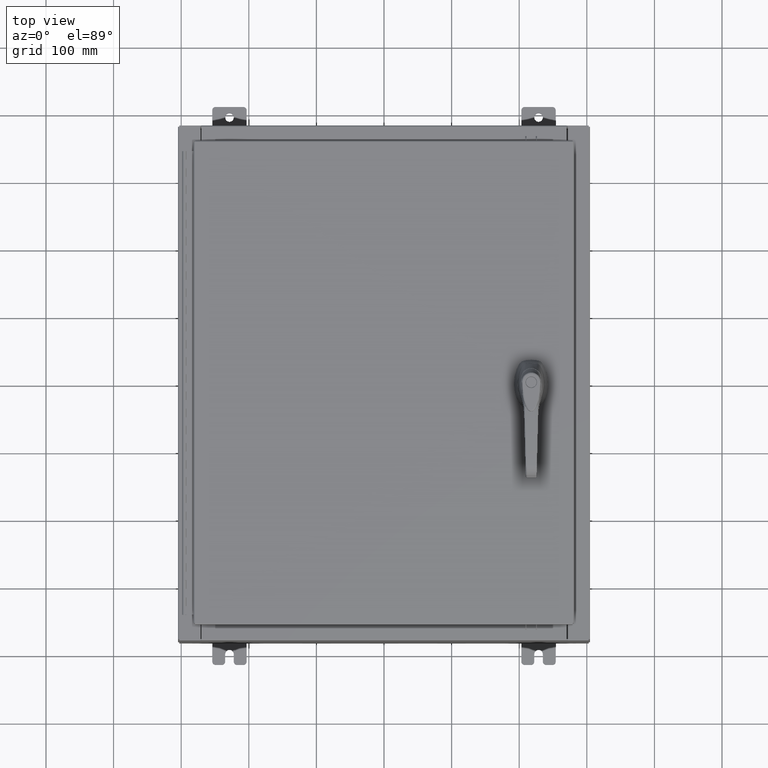
[diagram: clean part render]
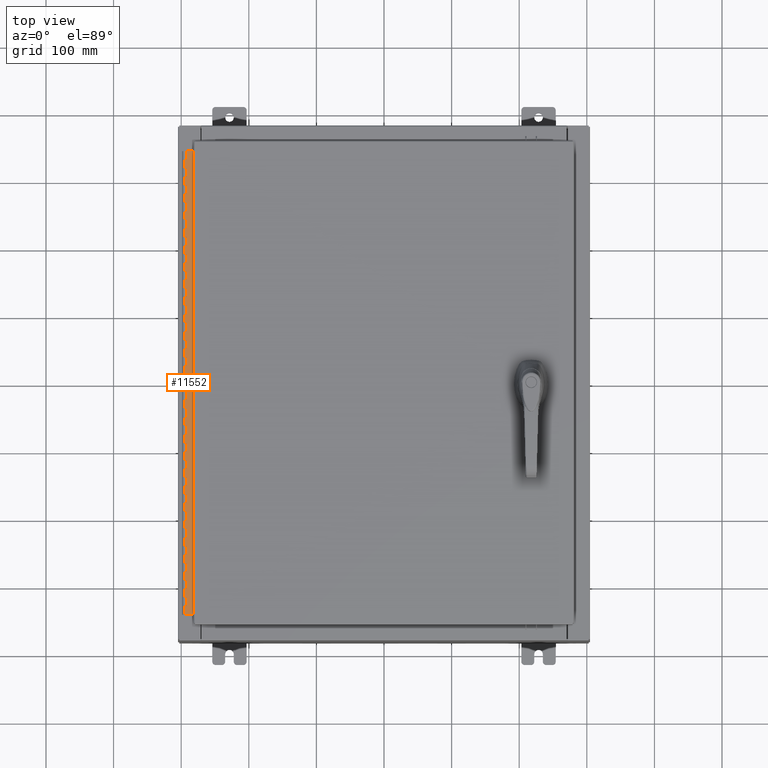
[diagram: same view with one face highlighted and labeled with its STEP entity id]
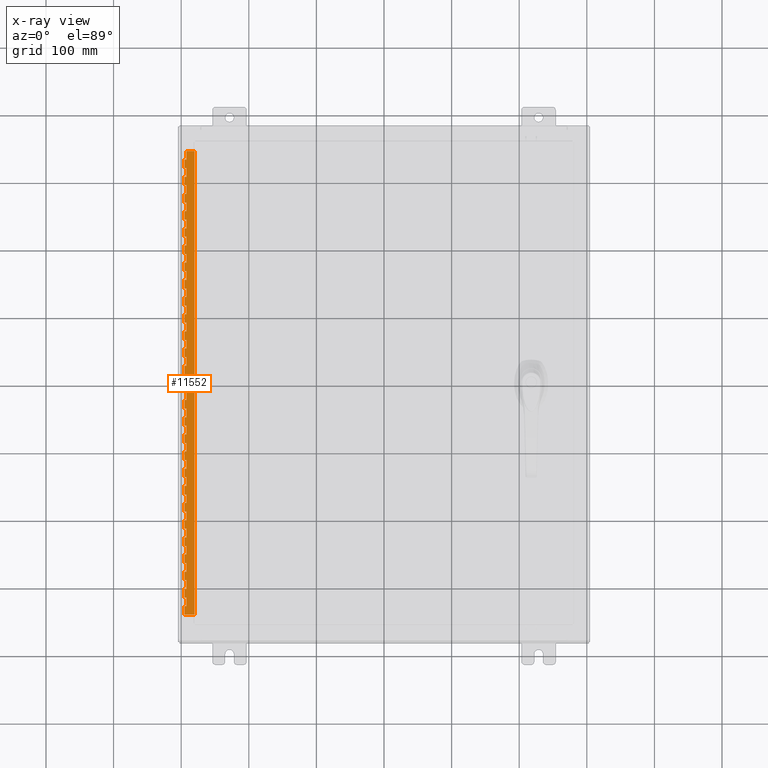
[diagram: x-ray of the same camera — body ghosted, the highlighted face saturated]
A machine part, top view. The second image highlights one B-rep face of the part: STEP entity #11552.
The next image is the same camera in x-ray: the body ghosted, the highlighted face saturated — about 0% of this face is hidden behind the body in this view.
In plain terms, the highlighted planar face has unit normal (-0, -0, 1).
Its self-contained STEP definition (entity closure, byte-faithful):
#53 = VECTOR ( 'NONE', #45009, 39.37007874015748100 ) ;
#54 = ORIENTED_EDGE ( 'NONE', *, *, #92384, .F. ) ;
#338 = EDGE_CURVE ( 'NONE', #95577, #1893, #115638, .T. ) ;
#370 = VERTEX_POINT ( 'NONE', #6316 ) ;
#384 = LINE ( 'NONE', #50095, #24368 ) ;
#400 = DIRECTION ( 'NONE',  ( 0.0000000000000000000, 0.0000000000000000000, 1.000000000000000000 ) ) ;
#529 = LINE ( 'NONE', #87804, #21692 ) ;
#682 = DIRECTION ( 'NONE',  ( 0.0000000000000000000, -0.0000000000000000000, -1.000000000000000000 ) ) ;
#762 = LINE ( 'NONE', #55117, #27586 ) ;
#884 = VECTOR ( 'NONE', #82621, 39.37007874015748100 ) ;
#1005 = LINE ( 'NONE', #43395, #46186 ) ;
#1023 = EDGE_CURVE ( 'NONE', #69709, #48493, #19993, .T. ) ;
#1047 = VECTOR ( 'NONE', #21646, 39.37007874015748100 ) ;
#1091 = DIRECTION ( 'NONE',  ( 0.0000000000000000000, -0.0000000000000000000, -1.000000000000000000 ) ) ;
#1245 = LINE ( 'NONE', #116531, #70481 ) ;
#1333 = VECTOR ( 'NONE', #20501, 39.37007874015748100 ) ;
#1532 = DIRECTION ( 'NONE',  ( 3.389037039080723100E-015, 1.000000000000000000, -0.0000000000000000000 ) ) ;
#1539 = ORIENTED_EDGE ( 'NONE', *, *, #71091, .F. ) ;
#1831 = ORIENTED_EDGE ( 'NONE', *, *, #75977, .F. ) ;
#1860 = ORIENTED_EDGE ( 'NONE', *, *, #40215, .F. ) ;
#1893 = VERTEX_POINT ( 'NONE', #49736 ) ;
#2115 = VECTOR ( 'NONE', #34506, 39.37007874015748100 ) ;
#2245 = EDGE_CURVE ( 'NONE', #64985, #49187, #96260, .T. ) ;
#2580 = CARTESIAN_POINT ( 'NONE',  ( -0.6869999999999982800, 0.5504999999999997700, -12.49999999999999800 ) ) ;
#2826 = ORIENTED_EDGE ( 'NONE', *, *, #23218, .F. ) ;
#3163 = CARTESIAN_POINT ( 'NONE',  ( -0.6869999999999978300, 0.6754999999999996600, -16.00000000000000000 ) ) ;
#3242 = VECTOR ( 'NONE', #33681, 39.37007874015748100 ) ;
#3441 = EDGE_CURVE ( 'NONE', #35885, #58074, #52165, .T. ) ;
#3492 = CARTESIAN_POINT ( 'NONE',  ( -0.6869999999999978300, 0.6754999999999996600, -13.50000000000000000 ) ) ;
#3953 = EDGE_CURVE ( 'NONE', #88082, #74555, #98886, .T. ) ;
#4185 = DIRECTION ( 'NONE',  ( 0.0000000000000000000, -0.0000000000000000000, -1.000000000000000000 ) ) ;
#4214 = CARTESIAN_POINT ( 'NONE',  ( -0.6869999999999973900, 0.8004999999999995500, -2.000000000000000000 ) ) ;
#4440 = CARTESIAN_POINT ( 'NONE',  ( -0.6869999999999982800, 0.5504999999999997700, -9.000000000000000000 ) ) ;
#4518 = CARTESIAN_POINT ( 'NONE',  ( -0.6869999999999978300, 0.6754999999999996600, -10.00000000000000000 ) ) ;
#4525 = VERTEX_POINT ( 'NONE', #57710 ) ;
#4746 = CARTESIAN_POINT ( 'NONE',  ( -0.6869999999999978300, 0.6754999999999996600, -2.500000000000000000 ) ) ;
#4819 = EDGE_CURVE ( 'NONE', #5480, #74177, #80368, .T. ) ;
#4823 = CARTESIAN_POINT ( 'NONE',  ( -0.6869999999999978300, 0.6754999999999996600, -2.000000000000000000 ) ) ;
#4929 = CARTESIAN_POINT ( 'NONE',  ( -0.6869999999999978300, 0.6754999999999996600, -4.500000000000000000 ) ) ;
#4954 = DIRECTION ( 'NONE',  ( -3.389037039080723100E-015, -1.000000000000000000, 0.0000000000000000000 ) ) ;
#5090 = DIRECTION ( 'NONE',  ( 0.0000000000000000000, 0.0000000000000000000, 1.000000000000000000 ) ) ;
#5116 = CARTESIAN_POINT ( 'NONE',  ( -0.6869999999999978300, 0.6754999999999996600, -27.00000000000000000 ) ) ;
#5124 = VECTOR ( 'NONE', #19584, 39.37007874015748100 ) ;
#5183 = CARTESIAN_POINT ( 'NONE',  ( -0.6869999999999982800, 0.5504999999999997700, -18.50000000000000000 ) ) ;
#5390 = CARTESIAN_POINT ( 'NONE',  ( -0.6869999999999982800, 0.5504999999999997700, -20.00000000000000000 ) ) ;
#5480 = VERTEX_POINT ( 'NONE', #111467 ) ;
#5607 = CARTESIAN_POINT ( 'NONE',  ( -0.6869999999999982800, 0.5504999999999997700, -23.50000000000000000 ) ) ;
#5650 = EDGE_CURVE ( 'NONE', #66346, #27623, #1245, .T. ) ;
#5821 = DIRECTION ( 'NONE',  ( -3.389037039080723100E-015, -1.000000000000000000, 0.0000000000000000000 ) ) ;
#5863 = CARTESIAN_POINT ( 'NONE',  ( -0.6869999999999978300, 0.6754999999999996600, -16.50000000000000000 ) ) ;
#5984 = VERTEX_POINT ( 'NONE', #54901 ) ;
#6316 = CARTESIAN_POINT ( 'NONE',  ( -0.6869999999999978300, 0.6754999999999996600, -14.99999999999999800 ) ) ;
#6423 = ORIENTED_EDGE ( 'NONE', *, *, #62403, .F. ) ;
#6580 = DIRECTION ( 'NONE',  ( 0.0000000000000000000, 0.0000000000000000000, 1.000000000000000000 ) ) ;
#6588 = CARTESIAN_POINT ( 'NONE',  ( -0.6870000000000022800, -0.6245000000000003900, -27.00000000000000000 ) ) ;
#6630 = CARTESIAN_POINT ( 'NONE',  ( -0.6869999999999978300, 0.6754999999999996600, -27.00000000000000000 ) ) ;
#6660 = CARTESIAN_POINT ( 'NONE',  ( -0.6869999999999978300, 0.6754999999999996600, -20.50000000000000400 ) ) ;
#6757 = LINE ( 'NONE', #73549, #73241 ) ;
#6969 = CARTESIAN_POINT ( 'NONE',  ( -0.6869999999999978300, 0.6754999999999996600, -27.00000000000000000 ) ) ;
#7041 = CARTESIAN_POINT ( 'NONE',  ( -0.6869999999999982800, 0.5504999999999997700, -6.499999999999999100 ) ) ;
#7322 = LINE ( 'NONE', #79130, #52537 ) ;
#7578 = CARTESIAN_POINT ( 'NONE',  ( -0.6869999999999978300, 0.6754999999999996600, -27.00000000000000000 ) ) ;
#7659 = ORIENTED_EDGE ( 'NONE', *, *, #9933, .T. ) ;
#8133 = EDGE_CURVE ( 'NONE', #102601, #87694, #75694, .T. ) ;
#8139 = VERTEX_POINT ( 'NONE', #93410 ) ;
#8240 = VECTOR ( 'NONE', #33260, 39.37007874015748100 ) ;
#8482 = DIRECTION ( 'NONE',  ( 3.389037039080723100E-015, 1.000000000000000000, -0.0000000000000000000 ) ) ;
#8718 = CARTESIAN_POINT ( 'NONE',  ( -0.6869999999999973900, 0.8004999999999995500, -26.00000000000000000 ) ) ;
#8777 = FACE_OUTER_BOUND ( 'NONE', #82652, .T. ) ;
#8938 = EDGE_CURVE ( 'NONE', #68364, #95877, #78422, .T. ) ;
#8962 = EDGE_CURVE ( 'NONE', #43180, #57293, #99684, .T. ) ;
#8983 = VERTEX_POINT ( 'NONE', #13508 ) ;
#8991 = EDGE_CURVE ( 'NONE', #15124, #4525, #75592, .T. ) ;
#9152 = DIRECTION ( 'NONE',  ( -3.389037039080723100E-015, -1.000000000000000000, 0.0000000000000000000 ) ) ;
#9426 = VECTOR ( 'NONE', #87657, 39.37007874015748100 ) ;
#9620 = VERTEX_POINT ( 'NONE', #62841 ) ;
#9654 = EDGE_CURVE ( 'NONE', #16113, #48493, #59795, .T. ) ;
#9711 = VERTEX_POINT ( 'NONE', #28516 ) ;
#9733 = VERTEX_POINT ( 'NONE', #91800 ) ;
#9795 = CARTESIAN_POINT ( 'NONE',  ( -0.6869999999999978300, 0.6754999999999996600, -3.500000000000000000 ) ) ;
#9825 = CARTESIAN_POINT ( 'NONE',  ( -0.6869999999999982800, 0.5504999999999997700, -20.50000000000000400 ) ) ;
#9834 = EDGE_CURVE ( 'NONE', #84332, #34957, #72630, .T. ) ;
#9845 = VERTEX_POINT ( 'NONE', #4440 ) ;
#9927 = CARTESIAN_POINT ( 'NONE',  ( -0.6869999999999982800, 0.5504999999999997700, -21.50000000000000400 ) ) ;
#9933 = EDGE_CURVE ( 'NONE', #102601, #61857, #529, .T. ) ;
#9967 = CARTESIAN_POINT ( 'NONE',  ( -0.6869999999999982800, 0.5504999999999997700, -14.99999999999999800 ) ) ;
#9996 = VECTOR ( 'NONE', #99848, 39.37007874015748100 ) ;
#10036 = CARTESIAN_POINT ( 'NONE',  ( -0.6869999999999982800, 0.5504999999999997700, -15.50000000000000000 ) ) ;
#10071 = ORIENTED_EDGE ( 'NONE', *, *, #73048, .T. ) ;
#10285 = VERTEX_POINT ( 'NONE', #47327 ) ;
#10603 = EDGE_CURVE ( 'NONE', #104744, #41432, #105152, .T. ) ;
#10697 = LINE ( 'NONE', #59511, #98421 ) ;
#10769 = LINE ( 'NONE', #96381, #82922 ) ;
#10895 = VECTOR ( 'NONE', #50903, 39.37007874015748100 ) ;
#11119 = CARTESIAN_POINT ( 'NONE',  ( -0.6869999999999973900, 0.8004999999999995500, -23.50000000000000000 ) ) ;
#11143 = LINE ( 'NONE', #75180, #83285 ) ;
#11303 = CARTESIAN_POINT ( 'NONE',  ( -0.6869999999999973900, 0.8004999999999995500, -8.500000000000000000 ) ) ;
#11549 = VECTOR ( 'NONE', #49464, 39.37007874015748100 ) ;
#11552 = ADVANCED_FACE ( 'NONE', ( #8777 ), #70221, .T. ) ;
#11629 = EDGE_CURVE ( 'NONE', #16113, #98177, #53958, .T. ) ;
#11828 = LINE ( 'NONE', #18683, #56977 ) ;
#11874 = VERTEX_POINT ( 'NONE', #9967 ) ;
#11913 = VERTEX_POINT ( 'NONE', #19456 ) ;
#12071 = CARTESIAN_POINT ( 'NONE',  ( -0.6869999999999982800, 0.5504999999999997700, -1.499999999999999800 ) ) ;
#12502 = VERTEX_POINT ( 'NONE', #9825 ) ;
#12710 = LINE ( 'NONE', #63240, #79203 ) ;
#12820 = DIRECTION ( 'NONE',  ( 0.0000000000000000000, -0.0000000000000000000, -1.000000000000000000 ) ) ;
#12830 = LINE ( 'NONE', #27045, #9996 ) ;
#12947 = CARTESIAN_POINT ( 'NONE',  ( -0.6869999999999973900, 0.8004999999999995500, -4.000000000000000000 ) ) ;
#12948 = ORIENTED_EDGE ( 'NONE', *, *, #17185, .T. ) ;
#12951 = CARTESIAN_POINT ( 'NONE',  ( -0.6869999999999982800, 0.5504999999999997700, -24.50000000000000000 ) ) ;
#13070 = EDGE_CURVE ( 'NONE', #77094, #47304, #14410, .T. ) ;
#13113 = CARTESIAN_POINT ( 'NONE',  ( -0.6869999999999982800, 0.5504999999999997700, -17.99999999999999600 ) ) ;
#13240 = LINE ( 'NONE', #81802, #82557 ) ;
#13463 = CARTESIAN_POINT ( 'NONE',  ( -0.6869999999999978300, 0.6754999999999996600, -22.00000000000000000 ) ) ;
#13489 = ORIENTED_EDGE ( 'NONE', *, *, #42220, .F. ) ;
#13494 = DIRECTION ( 'NONE',  ( -3.389037039080723100E-015, -1.000000000000000000, 0.0000000000000000000 ) ) ;
#13508 = CARTESIAN_POINT ( 'NONE',  ( -0.6869999999999978300, 0.6754999999999996600, -8.500000000000000000 ) ) ;
#13678 = CARTESIAN_POINT ( 'NONE',  ( -0.6869999999999973900, 0.8004999999999995500, -12.99999999999999800 ) ) ;
#13865 = CARTESIAN_POINT ( 'NONE',  ( -0.6869999999999973900, 0.8004999999999995500, -23.00000000000000000 ) ) ;
#13960 = LINE ( 'NONE', #30702, #107418 ) ;
#13979 = EDGE_CURVE ( 'NONE', #19361, #19857, #55392, .T. ) ;
#14015 = ORIENTED_EDGE ( 'NONE', *, *, #96419, .T. ) ;
#14063 = EDGE_CURVE ( 'NONE', #8983, #94143, #97941, .T. ) ;
#14365 = DIRECTION ( 'NONE',  ( 0.0000000000000000000, -0.0000000000000000000, -1.000000000000000000 ) ) ;
#14390 = ORIENTED_EDGE ( 'NONE', *, *, #17777, .F. ) ;
#14406 = EDGE_CURVE ( 'NONE', #11874, #370, #32778, .T. ) ;
#14410 = LINE ( 'NONE', #12947, #62404 ) ;
#14568 = DIRECTION ( 'NONE',  ( 0.0000000000000000000, 0.0000000000000000000, 1.000000000000000000 ) ) ;
#14712 = VECTOR ( 'NONE', #67994, 39.37007874015748100 ) ;
#14798 = CARTESIAN_POINT ( 'NONE',  ( -0.6869999999999973900, 0.8004999999999995500, -14.99999999999999800 ) ) ;
#14835 = CARTESIAN_POINT ( 'NONE',  ( -0.6869999999999978300, 0.6754999999999996600, -2.999999999999999600 ) ) ;
#15124 = VERTEX_POINT ( 'NONE', #10036 ) ;
#15388 = DIRECTION ( 'NONE',  ( 0.0000000000000000000, 0.0000000000000000000, 1.000000000000000000 ) ) ;
#15698 = VERTEX_POINT ( 'NONE', #19377 ) ;
#15871 = VERTEX_POINT ( 'NONE', #60349 ) ;
#15947 = LINE ( 'NONE', #4214, #106557 ) ;
#15949 = DIRECTION ( 'NONE',  ( 3.389037039080723100E-015, 1.000000000000000000, -0.0000000000000000000 ) ) ;
#16113 = VERTEX_POINT ( 'NONE', #80202 ) ;
#16117 = CARTESIAN_POINT ( 'NONE',  ( -0.6869999999999982800, 0.5504999999999997700, -6.499999999999999100 ) ) ;
#16159 = CARTESIAN_POINT ( 'NONE',  ( -0.6869999999999978300, 0.6754999999999996600, -15.50000000000000000 ) ) ;
#16186 = VERTEX_POINT ( 'NONE', #46513 ) ;
#16753 = CARTESIAN_POINT ( 'NONE',  ( -0.6869999999999973900, 0.8004999999999995500, -10.50000000000000000 ) ) ;
#16809 = LINE ( 'NONE', #21969, #110287 ) ;
#17164 = VECTOR ( 'NONE', #54603, 39.37007874015748100 ) ;
#17185 = EDGE_CURVE ( 'NONE', #70033, #59352, #74896, .T. ) ;
#17384 = EDGE_CURVE ( 'NONE', #105117, #114326, #111774, .T. ) ;
#17659 = VECTOR ( 'NONE', #99091, 39.37007874015748100 ) ;
#17777 = EDGE_CURVE ( 'NONE', #105117, #64985, #16809, .T. ) ;
#17805 = ORIENTED_EDGE ( 'NONE', *, *, #33886, .F. ) ;
#18045 = ORIENTED_EDGE ( 'NONE', *, *, #47149, .T. ) ;
#18302 = VECTOR ( 'NONE', #106775, 39.37007874015748100 ) ;
#18665 = CARTESIAN_POINT ( 'NONE',  ( -0.6869999999999978300, 0.6754999999999996600, -27.00000000000000000 ) ) ;
#18683 = CARTESIAN_POINT ( 'NONE',  ( -0.6869999999999982800, 0.5504999999999997700, -10.50000000000000000 ) ) ;
#18751 = VERTEX_POINT ( 'NONE', #83812 ) ;
#18927 = VECTOR ( 'NONE', #25686, 39.37007874015748100 ) ;
#18994 = LINE ( 'NONE', #51853, #69861 ) ;
#19025 = CARTESIAN_POINT ( 'NONE',  ( -0.6869999999999978300, 0.6754999999999996600, -27.00000000000000000 ) ) ;
#19081 = CARTESIAN_POINT ( 'NONE',  ( -0.6869999999999973900, 0.8004999999999995500, -3.500000000000000000 ) ) ;
#19203 = LINE ( 'NONE', #95079, #40368 ) ;
#19229 = CARTESIAN_POINT ( 'NONE',  ( -0.6869999999999982800, 0.5504999999999997700, -5.500000000000000000 ) ) ;
#19361 = VERTEX_POINT ( 'NONE', #27950 ) ;
#19375 = CARTESIAN_POINT ( 'NONE',  ( -0.6869999999999982800, 0.5504999999999997700, -4.500000000000000000 ) ) ;
#19377 = CARTESIAN_POINT ( 'NONE',  ( -0.6869999999999978300, 0.6754999999999996600, -12.49999999999999800 ) ) ;
#19382 = EDGE_CURVE ( 'NONE', #35566, #81598, #40602, .T. ) ;
#19456 = CARTESIAN_POINT ( 'NONE',  ( -0.6869999999999978300, 0.6754999999999996600, -21.50000000000000400 ) ) ;
#19467 = ORIENTED_EDGE ( 'NONE', *, *, #66395, .F. ) ;
#19584 = DIRECTION ( 'NONE',  ( 3.389037039080723100E-015, 1.000000000000000000, -0.0000000000000000000 ) ) ;
#19716 = EDGE_CURVE ( 'NONE', #15698, #113954, #101508, .T. ) ;
#19728 = LINE ( 'NONE', #96953, #64923 ) ;
#19857 = VERTEX_POINT ( 'NONE', #114981 ) ;
#19992 = CARTESIAN_POINT ( 'NONE',  ( -0.6869999999999978300, 0.6754999999999996600, -9.500000000000000000 ) ) ;
#19993 = LINE ( 'NONE', #54224, #17164 ) ;
#20045 = ORIENTED_EDGE ( 'NONE', *, *, #94705, .F. ) ;
#20123 = CARTESIAN_POINT ( 'NONE',  ( -0.6869999999999973900, 0.8004999999999995500, -22.50000000000000000 ) ) ;
#20166 = ORIENTED_EDGE ( 'NONE', *, *, #62141, .F. ) ;
#20430 = ORIENTED_EDGE ( 'NONE', *, *, #78855, .F. ) ;
#20483 = EDGE_CURVE ( 'NONE', #9845, #107552, #53159, .T. ) ;
#20501 = DIRECTION ( 'NONE',  ( 3.389037039080723100E-015, 1.000000000000000000, -0.0000000000000000000 ) ) ;
#20714 = EDGE_CURVE ( 'NONE', #35178, #98604, #41851, .T. ) ;
#21513 = ORIENTED_EDGE ( 'NONE', *, *, #84267, .F. ) ;
#21646 = DIRECTION ( 'NONE',  ( 0.0000000000000000000, -0.0000000000000000000, -1.000000000000000000 ) ) ;
#21692 = VECTOR ( 'NONE', #61197, 39.37007874015748100 ) ;
#21741 = LINE ( 'NONE', #52894, #18927 ) ;
#21898 = VERTEX_POINT ( 'NONE', #97890 ) ;
#21969 = CARTESIAN_POINT ( 'NONE',  ( -0.6869999999999973900, 0.8004999999999995500, -17.50000000000000000 ) ) ;
#22037 = LINE ( 'NONE', #19375, #884 ) ;
#22197 = EDGE_CURVE ( 'NONE', #100837, #80967, #95454, .T. ) ;
#22248 = CARTESIAN_POINT ( 'NONE',  ( -0.6869999999999973900, 0.8004999999999995500, -17.00000000000000000 ) ) ;
#22443 = VERTEX_POINT ( 'NONE', #115234 ) ;
#22521 = CARTESIAN_POINT ( 'NONE',  ( -0.6869999999999973900, 0.8004999999999995500, -11.99999999999999800 ) ) ;
#22618 = CARTESIAN_POINT ( 'NONE',  ( -0.6869999999999978300, 0.6754999999999996600, -23.50000000000000000 ) ) ;
#22642 = EDGE_CURVE ( 'NONE', #100837, #54893, #75590, .T. ) ;
#22775 = DIRECTION ( 'NONE',  ( 3.389037039080723100E-015, 1.000000000000000000, -0.0000000000000000000 ) ) ;
#22845 = VERTEX_POINT ( 'NONE', #99075 ) ;
#22976 = CARTESIAN_POINT ( 'NONE',  ( -0.6869999999999978300, 0.6754999999999996600, -27.00000000000000000 ) ) ;
#22981 = VECTOR ( 'NONE', #84994, 39.37007874015748100 ) ;
#22987 = EDGE_CURVE ( 'NONE', #9620, #114326, #52824, .T. ) ;
#23218 = EDGE_CURVE ( 'NONE', #35832, #22845, #83953, .T. ) ;
#23278 = CARTESIAN_POINT ( 'NONE',  ( -0.6869999999999982800, 0.5504999999999997700, -26.50000000000000400 ) ) ;
#23364 = EDGE_CURVE ( 'NONE', #88898, #12502, #78308, .T. ) ;
#23807 = ORIENTED_EDGE ( 'NONE', *, *, #112988, .T. ) ;
#23833 = VECTOR ( 'NONE', #107016, 39.37007874015748100 ) ;
#23914 = ORIENTED_EDGE ( 'NONE', *, *, #22197, .F. ) ;
#24368 = VECTOR ( 'NONE', #104400, 39.37007874015748100 ) ;
#24383 = EDGE_CURVE ( 'NONE', #84332, #47304, #30096, .T. ) ;
#24625 = VECTOR ( 'NONE', #82283, 39.37007874015748100 ) ;
#24897 = ORIENTED_EDGE ( 'NONE', *, *, #102735, .T. ) ;
#25031 = LINE ( 'NONE', #75807, #1047 ) ;
#25170 = DIRECTION ( 'NONE',  ( 3.369016658928398200E-015, 1.000000000000000000, 0.0000000000000000000 ) ) ;
#25421 = VECTOR ( 'NONE', #89051, 39.37007874015748100 ) ;
#25505 = CARTESIAN_POINT ( 'NONE',  ( -0.6869999999999978300, 0.6754999999999996600, -27.00000000000000000 ) ) ;
#25686 = DIRECTION ( 'NONE',  ( 3.389037039080723100E-015, 1.000000000000000000, -0.0000000000000000000 ) ) ;
#25771 = CARTESIAN_POINT ( 'NONE',  ( -0.6869999999999982800, 0.5504999999999997700, -10.00000000000000000 ) ) ;
#25780 = CARTESIAN_POINT ( 'NONE',  ( -0.6869999999999973900, 0.8004999999999995500, -6.499999999999999100 ) ) ;
#25796 = EDGE_CURVE ( 'NONE', #94395, #70340, #55043, .T. ) ;
#26111 = LINE ( 'NONE', #16753, #92614 ) ;
#26122 = CARTESIAN_POINT ( 'NONE',  ( -0.6869999999999978300, 0.6754999999999996600, -23.99999999999999600 ) ) ;
#27045 = CARTESIAN_POINT ( 'NONE',  ( -0.6869999999999973900, 0.8004999999999995500, -26.50000000000000400 ) ) ;
#27144 = EDGE_CURVE ( 'NONE', #54846, #36495, #49413, .T. ) ;
#27156 = ORIENTED_EDGE ( 'NONE', *, *, #28033, .F. ) ;
#27258 = DIRECTION ( 'NONE',  ( 0.0000000000000000000, 0.0000000000000000000, 1.000000000000000000 ) ) ;
#27396 = LINE ( 'NONE', #70338, #115217 ) ;
#27586 = VECTOR ( 'NONE', #1091, 39.37007874015748100 ) ;
#27623 = VERTEX_POINT ( 'NONE', #40289 ) ;
#27924 = VERTEX_POINT ( 'NONE', #73855 ) ;
#27950 = CARTESIAN_POINT ( 'NONE',  ( -0.6869999999999982800, 0.5504999999999997700, -5.500000000000000000 ) ) ;
#28033 = EDGE_CURVE ( 'NONE', #98604, #36086, #43647, .T. ) ;
#28516 = CARTESIAN_POINT ( 'NONE',  ( -0.6869999999999978300, 0.6754999999999996600, -1.000000000000000000 ) ) ;
#28681 = ORIENTED_EDGE ( 'NONE', *, *, #86171, .F. ) ;
#28903 = ORIENTED_EDGE ( 'NONE', *, *, #8133, .F. ) ;
#29309 = DIRECTION ( 'NONE',  ( 3.389037039080723100E-015, 1.000000000000000000, -0.0000000000000000000 ) ) ;
#29539 = EDGE_CURVE ( 'NONE', #105109, #54893, #39251, .T. ) ;
#29964 = VECTOR ( 'NONE', #68908, 39.37007874015748100 ) ;
#30096 = LINE ( 'NONE', #7578, #75366 ) ;
#30245 = ORIENTED_EDGE ( 'NONE', *, *, #13070, .F. ) ;
#30392 = CARTESIAN_POINT ( 'NONE',  ( -0.6869999999999978300, 0.6754999999999996600, -17.50000000000000000 ) ) ;
#30423 = VECTOR ( 'NONE', #92721, 39.37007874015748100 ) ;
#30448 = EDGE_CURVE ( 'NONE', #116669, #107406, #33444, .T. ) ;
#30702 = CARTESIAN_POINT ( 'NONE',  ( -0.6869999999999982800, 0.5504999999999997700, -21.50000000000000400 ) ) ;
#30877 = CARTESIAN_POINT ( 'NONE',  ( -0.6869999999999973900, 0.8004999999999995500, -16.50000000000000000 ) ) ;
#30944 = VECTOR ( 'NONE', #4185, 39.37007874015748100 ) ;
#31253 = DIRECTION ( 'NONE',  ( -3.389037039080723100E-015, -1.000000000000000000, 0.0000000000000000000 ) ) ;
#31353 = CARTESIAN_POINT ( 'NONE',  ( -0.6869999999999982800, 0.5504999999999997700, -10.50000000000000000 ) ) ;
#31482 = CARTESIAN_POINT ( 'NONE',  ( -0.6869999999999982800, 0.5504999999999997700, -12.49999999999999800 ) ) ;
#31607 = CARTESIAN_POINT ( 'NONE',  ( -0.6869999999999982800, 0.5504999999999997700, -25.50000000000000400 ) ) ;
#31698 = VECTOR ( 'NONE', #109711, 39.37007874015748100 ) ;
#32076 = LINE ( 'NONE', #58997, #98612 ) ;
#32593 = EDGE_CURVE ( 'NONE', #5480, #34304, #106856, .T. ) ;
#32597 = ORIENTED_EDGE ( 'NONE', *, *, #69683, .T. ) ;
#32645 = EDGE_CURVE ( 'NONE', #36592, #111557, #26111, .T. ) ;
#32700 = CARTESIAN_POINT ( 'NONE',  ( -0.6869999999999973900, 0.8004999999999995500, -0.5000000000000000000 ) ) ;
#32778 = LINE ( 'NONE', #14798, #29964 ) ;
#32799 = VERTEX_POINT ( 'NONE', #108541 ) ;
#32884 = CARTESIAN_POINT ( 'NONE',  ( -0.6869999999999973900, 0.8004999999999995500, -14.00000000000000000 ) ) ;
#32905 = CARTESIAN_POINT ( 'NONE',  ( -0.6869999999999982800, 0.5504999999999997700, -13.50000000000000000 ) ) ;
#33008 = VECTOR ( 'NONE', #13494, 39.37007874015748100 ) ;
#33010 = CARTESIAN_POINT ( 'NONE',  ( -0.6869999999999982800, 0.5504999999999997700, -2.999999999999999600 ) ) ;
#33033 = VECTOR ( 'NONE', #77990, 39.37007874015748100 ) ;
#33260 = DIRECTION ( 'NONE',  ( 0.0000000000000000000, -0.0000000000000000000, -1.000000000000000000 ) ) ;
#33288 = CARTESIAN_POINT ( 'NONE',  ( -0.6869999999999978300, 0.6754999999999996600, -27.00000000000000000 ) ) ;
#33444 = LINE ( 'NONE', #105513, #9426 ) ;
#33681 = DIRECTION ( 'NONE',  ( 0.0000000000000000000, -0.0000000000000000000, -1.000000000000000000 ) ) ;
#33704 = EDGE_CURVE ( 'NONE', #15698, #27924, #68396, .T. ) ;
#33886 = EDGE_CURVE ( 'NONE', #111557, #89534, #11828, .T. ) ;
#33889 = VECTOR ( 'NONE', #46665, 39.37007874015748100 ) ;
#34044 = EDGE_CURVE ( 'NONE', #88082, #35178, #99567, .T. ) ;
#34162 = CARTESIAN_POINT ( 'NONE',  ( -0.6869999999999978300, 0.6754999999999996600, -9.000000000000000000 ) ) ;
#34254 = ORIENTED_EDGE ( 'NONE', *, *, #8938, .F. ) ;
#34304 = VERTEX_POINT ( 'NONE', #87341 ) ;
#34387 = CARTESIAN_POINT ( 'NONE',  ( -0.6869999999999973900, 0.8004999999999995500, -6.000000000000000900 ) ) ;
#34506 = DIRECTION ( 'NONE',  ( -3.389037039080723100E-015, -1.000000000000000000, 0.0000000000000000000 ) ) ;
#34639 = CARTESIAN_POINT ( 'NONE',  ( -0.6869999999999973900, 0.8004999999999995500, -7.499999999999999100 ) ) ;
#34957 = VERTEX_POINT ( 'NONE', #70547 ) ;
#35080 = CARTESIAN_POINT ( 'NONE',  ( -0.6869999999999978300, 0.6754999999999996600, -27.00000000000000000 ) ) ;
#35178 = VERTEX_POINT ( 'NONE', #5607 ) ;
#35566 = VERTEX_POINT ( 'NONE', #73917 ) ;
#35657 = ORIENTED_EDGE ( 'NONE', *, *, #90605, .T. ) ;
#35832 = VERTEX_POINT ( 'NONE', #77838 ) ;
#35885 = VERTEX_POINT ( 'NONE', #5863 ) ;
#36086 = VERTEX_POINT ( 'NONE', #26122 ) ;
#36108 = EDGE_CURVE ( 'NONE', #49187, #61857, #60974, .T. ) ;
#36110 = CARTESIAN_POINT ( 'NONE',  ( -0.6869999999999978300, 0.6754999999999996600, -8.000000000000000000 ) ) ;
#36343 = ORIENTED_EDGE ( 'NONE', *, *, #74814, .T. ) ;
#36424 = DIRECTION ( 'NONE',  ( 0.0000000000000000000, -0.0000000000000000000, -1.000000000000000000 ) ) ;
#36495 = VERTEX_POINT ( 'NONE', #16117 ) ;
#36592 = VERTEX_POINT ( 'NONE', #117401 ) ;
#36774 = VECTOR ( 'NONE', #6580, 39.37007874015748100 ) ;
#36929 = CARTESIAN_POINT ( 'NONE',  ( -0.6869999999999982800, 0.5504999999999997700, -0.5000000000000000000 ) ) ;
#37104 = LINE ( 'NONE', #110607, #109368 ) ;
#37404 = CARTESIAN_POINT ( 'NONE',  ( -0.6869999999999982800, 0.5504999999999997700, -26.50000000000000400 ) ) ;
#37442 = CARTESIAN_POINT ( 'NONE',  ( -0.6870000000000022800, -0.6245000000000003900, 0.0000000000000000000 ) ) ;
#37796 = VECTOR ( 'NONE', #40575, 39.37007874015748100 ) ;
#38226 = EDGE_CURVE ( 'NONE', #96250, #94922, #384, .T. ) ;
#38235 = VECTOR ( 'NONE', #40685, 39.37007874015748100 ) ;
#38337 = VECTOR ( 'NONE', #60485, 39.37007874015748100 ) ;
#38503 = CARTESIAN_POINT ( 'NONE',  ( -0.6869999999999982800, 0.5504999999999997700, -11.50000000000000000 ) ) ;
#38772 = DIRECTION ( 'NONE',  ( 0.0000000000000000000, -0.0000000000000000000, -1.000000000000000000 ) ) ;
#38985 = ORIENTED_EDGE ( 'NONE', *, *, #106025, .F. ) ;
#39251 = LINE ( 'NONE', #13678, #105821 ) ;
#39631 = ORIENTED_EDGE ( 'NONE', *, *, #78529, .F. ) ;
#39639 = ORIENTED_EDGE ( 'NONE', *, *, #55766, .F. ) ;
#39730 = EDGE_CURVE ( 'NONE', #114733, #18751, #113462, .T. ) ;
#40215 = EDGE_CURVE ( 'NONE', #22443, #96686, #12830, .T. ) ;
#40217 = DIRECTION ( 'NONE',  ( 0.0000000000000000000, -0.0000000000000000000, -1.000000000000000000 ) ) ;
#40289 = CARTESIAN_POINT ( 'NONE',  ( -0.6869999999999982800, 0.5504999999999997700, -24.99999999999999600 ) ) ;
#40368 = VECTOR ( 'NONE', #94293, 39.37007874015748100 ) ;
#40407 = CARTESIAN_POINT ( 'NONE',  ( -0.6869999999999978300, 0.6754999999999996600, -27.00000000000000000 ) ) ;
#40575 = DIRECTION ( 'NONE',  ( -3.389037039080723100E-015, -1.000000000000000000, 0.0000000000000000000 ) ) ;
#40584 = LINE ( 'NONE', #22521, #112878 ) ;
#40602 = LINE ( 'NONE', #55534, #112895 ) ;
#40685 = DIRECTION ( 'NONE',  ( 0.0000000000000000000, -0.0000000000000000000, -1.000000000000000000 ) ) ;
#40815 = EDGE_CURVE ( 'NONE', #63874, #59352, #72145, .T. ) ;
#40825 = DIRECTION ( 'NONE',  ( -3.389037039080723100E-015, -1.000000000000000000, 0.0000000000000000000 ) ) ;
#41039 = CARTESIAN_POINT ( 'NONE',  ( -0.6869999999999982800, 0.5504999999999997700, -22.50000000000000000 ) ) ;
#41259 = VECTOR ( 'NONE', #59755, 39.37007874015748100 ) ;
#41432 = VERTEX_POINT ( 'NONE', #115409 ) ;
#41851 = LINE ( 'NONE', #85140, #63012 ) ;
#42220 = EDGE_CURVE ( 'NONE', #61168, #96243, #13960, .T. ) ;
#42684 = DIRECTION ( 'NONE',  ( -3.389037039080723100E-015, -1.000000000000000000, 0.0000000000000000000 ) ) ;
#42706 = DIRECTION ( 'NONE',  ( -3.389037039080723100E-015, -1.000000000000000000, 0.0000000000000000000 ) ) ;
#42951 = ORIENTED_EDGE ( 'NONE', *, *, #65102, .F. ) ;
#43129 = ORIENTED_EDGE ( 'NONE', *, *, #19382, .F. ) ;
#43180 = VERTEX_POINT ( 'NONE', #67335 ) ;
#43259 = VECTOR ( 'NONE', #112025, 39.37007874015748100 ) ;
#43326 = DIRECTION ( 'NONE',  ( 0.0000000000000000000, 0.0000000000000000000, 1.000000000000000000 ) ) ;
#43395 = CARTESIAN_POINT ( 'NONE',  ( -0.6869999999999978300, 0.6754999999999996600, -27.00000000000000000 ) ) ;
#43428 = DIRECTION ( 'NONE',  ( -3.389037039080723100E-015, -1.000000000000000000, 0.0000000000000000000 ) ) ;
#43514 = CARTESIAN_POINT ( 'NONE',  ( -0.6869999999999982800, 0.5504999999999997700, -19.50000000000000000 ) ) ;
#43583 = ORIENTED_EDGE ( 'NONE', *, *, #8991, .F. ) ;
#43586 = CARTESIAN_POINT ( 'NONE',  ( -0.6869999999999973900, 0.8004999999999995500, -14.49999999999999800 ) ) ;
#43647 = LINE ( 'NONE', #83738, #1333 ) ;
#43711 = DIRECTION ( 'NONE',  ( -3.389037039080723100E-015, -1.000000000000000000, 0.0000000000000000000 ) ) ;
#44245 = LINE ( 'NONE', #34387, #89553 ) ;
#44281 = DIRECTION ( 'NONE',  ( 3.389037039080723100E-015, 1.000000000000000000, -0.0000000000000000000 ) ) ;
#44306 = EDGE_CURVE ( 'NONE', #104744, #16186, #47604, .T. ) ;
#44786 = VECTOR ( 'NONE', #43326, 39.37007874015748100 ) ;
#44798 = VECTOR ( 'NONE', #113715, 39.37007874015748100 ) ;
#45009 = DIRECTION ( 'NONE',  ( 3.389037039080723100E-015, 1.000000000000000000, -0.0000000000000000000 ) ) ;
#45112 = CARTESIAN_POINT ( 'NONE',  ( -0.6869999999999982800, 0.5504999999999997700, -9.500000000000000000 ) ) ;
#45376 = VERTEX_POINT ( 'NONE', #19992 ) ;
#45501 = DIRECTION ( 'NONE',  ( 0.0000000000000000000, 0.0000000000000000000, 1.000000000000000000 ) ) ;
#45523 = DIRECTION ( 'NONE',  ( 3.369016658928398200E-015, 1.000000000000000000, 0.0000000000000000000 ) ) ;
#45588 = ORIENTED_EDGE ( 'NONE', *, *, #58076, .F. ) ;
#45658 = ORIENTED_EDGE ( 'NONE', *, *, #63088, .F. ) ;
#45687 = ORIENTED_EDGE ( 'NONE', *, *, #338, .F. ) ;
#45692 = EDGE_CURVE ( 'NONE', #49429, #95830, #19203, .T. ) ;
#45829 = CARTESIAN_POINT ( 'NONE',  ( -0.6869999999999978300, 0.6754999999999996600, -0.5000000000000000000 ) ) ;
#46022 = CARTESIAN_POINT ( 'NONE',  ( -0.6869999999999973900, 0.8004999999999995500, -2.500000000000000000 ) ) ;
#46186 = VECTOR ( 'NONE', #52480, 39.37007874015748100 ) ;
#46338 = ORIENTED_EDGE ( 'NONE', *, *, #39730, .T. ) ;
#46513 = CARTESIAN_POINT ( 'NONE',  ( -0.6869999999999998300, 0.07549999999999991400, 0.0000000000000000000 ) ) ;
#46579 = ORIENTED_EDGE ( 'NONE', *, *, #90031, .F. ) ;
#46624 = EDGE_CURVE ( 'NONE', #1893, #87116, #77023, .T. ) ;
#46665 = DIRECTION ( 'NONE',  ( -3.389037039080723100E-015, -1.000000000000000000, 0.0000000000000000000 ) ) ;
#46712 = VERTEX_POINT ( 'NONE', #45829 ) ;
#46745 = EDGE_CURVE ( 'NONE', #34957, #66552, #22037, .T. ) ;
#47133 = VECTOR ( 'NONE', #98797, 39.37007874015748100 ) ;
#47149 = EDGE_CURVE ( 'NONE', #35885, #48184, #10697, .T. ) ;
#47304 = VERTEX_POINT ( 'NONE', #70238 ) ;
#47327 = CARTESIAN_POINT ( 'NONE',  ( -0.6869999999999978300, 0.6754999999999996600, -24.50000000000000000 ) ) ;
#47545 = EDGE_CURVE ( 'NONE', #34304, #11874, #762, .T. ) ;
#47604 = LINE ( 'NONE', #61078, #44786 ) ;
#47690 = VECTOR ( 'NONE', #40217, 39.37007874015748100 ) ;
#47870 = ORIENTED_EDGE ( 'NONE', *, *, #88982, .F. ) ;
#47937 = LINE ( 'NONE', #52855, #18302 ) ;
#48070 = VECTOR ( 'NONE', #81251, 39.37007874015748100 ) ;
#48184 = VERTEX_POINT ( 'NONE', #3163 ) ;
#48444 = EDGE_CURVE ( 'NONE', #94143, #9845, #54298, .T. ) ;
#48493 = VERTEX_POINT ( 'NONE', #111015 ) ;
#48585 = CARTESIAN_POINT ( 'NONE',  ( -0.6869999999999982800, 0.5504999999999997700, -16.50000000000000000 ) ) ;
#48653 = AXIS2_PLACEMENT_3D ( 'NONE', #6588, #79368, #25170 ) ;
#48728 = ORIENTED_EDGE ( 'NONE', *, *, #30448, .F. ) ;
#49187 = VERTEX_POINT ( 'NONE', #13113 ) ;
#49244 = DIRECTION ( 'NONE',  ( 3.389037039080723100E-015, 1.000000000000000000, -0.0000000000000000000 ) ) ;
#49413 = LINE ( 'NONE', #25780, #25421 ) ;
#49429 = VERTEX_POINT ( 'NONE', #41039 ) ;
#49464 = DIRECTION ( 'NONE',  ( 0.0000000000000000000, 0.0000000000000000000, 1.000000000000000000 ) ) ;
#49469 = CARTESIAN_POINT ( 'NONE',  ( -0.6869999999999973900, 0.8004999999999995500, -13.50000000000000000 ) ) ;
#49736 = CARTESIAN_POINT ( 'NONE',  ( -0.6869999999999982800, 0.5504999999999997700, -26.00000000000000000 ) ) ;
#50095 = CARTESIAN_POINT ( 'NONE',  ( -0.6869999999999973900, 0.8004999999999995500, -10.00000000000000000 ) ) ;
#50138 = EDGE_CURVE ( 'NONE', #110798, #82055, #113547, .T. ) ;
#50430 = CARTESIAN_POINT ( 'NONE',  ( -0.6869999999999982800, 0.5504999999999997700, -16.50000000000000000 ) ) ;
#50555 = VECTOR ( 'NONE', #60198, 39.37007874015748100 ) ;
#50766 = VECTOR ( 'NONE', #5090, 39.37007874015748100 ) ;
#50863 = ORIENTED_EDGE ( 'NONE', *, *, #22987, .F. ) ;
#50903 = DIRECTION ( 'NONE',  ( 0.0000000000000000000, 0.0000000000000000000, 1.000000000000000000 ) ) ;
#51295 = CARTESIAN_POINT ( 'NONE',  ( -0.6869999999999978300, 0.6754999999999996600, -18.50000000000000000 ) ) ;
#51467 = VECTOR ( 'NONE', #27258, 39.37007874015748100 ) ;
#51556 = ORIENTED_EDGE ( 'NONE', *, *, #86886, .T. ) ;
#51853 = CARTESIAN_POINT ( 'NONE',  ( -0.6869999999999978300, 0.6754999999999996600, -27.00000000000000000 ) ) ;
#52055 = DIRECTION ( 'NONE',  ( 0.0000000000000000000, 0.0000000000000000000, 1.000000000000000000 ) ) ;
#52165 = LINE ( 'NONE', #30877, #97515 ) ;
#52473 = CARTESIAN_POINT ( 'NONE',  ( -0.6869999999999973900, 0.8004999999999995500, -22.00000000000000000 ) ) ;
#52480 = DIRECTION ( 'NONE',  ( 0.0000000000000000000, 0.0000000000000000000, 1.000000000000000000 ) ) ;
#52537 = VECTOR ( 'NONE', #69958, 39.37007874015748100 ) ;
#52824 = LINE ( 'NONE', #22248, #98188 ) ;
#52855 = CARTESIAN_POINT ( 'NONE',  ( -0.6869999999999982800, 0.5504999999999997700, -0.5000000000000000000 ) ) ;
#52894 = CARTESIAN_POINT ( 'NONE',  ( -0.6869999999999973900, 0.8004999999999995500, -1.000000000000000000 ) ) ;
#53050 = DIRECTION ( 'NONE',  ( -3.389037039080723100E-015, -1.000000000000000000, 0.0000000000000000000 ) ) ;
#53159 = LINE ( 'NONE', #82827, #5124 ) ;
#53503 = ORIENTED_EDGE ( 'NONE', *, *, #3441, .F. ) ;
#53812 = ORIENTED_EDGE ( 'NONE', *, *, #109738, .T. ) ;
#53852 = VECTOR ( 'NONE', #55516, 39.37007874015748100 ) ;
#53958 = LINE ( 'NONE', #34639, #75261 ) ;
#54125 = ORIENTED_EDGE ( 'NONE', *, *, #115740, .F. ) ;
#54224 = CARTESIAN_POINT ( 'NONE',  ( -0.6869999999999973900, 0.8004999999999995500, -7.000000000000000000 ) ) ;
#54298 = LINE ( 'NONE', #64617, #99690 ) ;
#54558 = CARTESIAN_POINT ( 'NONE',  ( -0.6870000000000022800, -0.6245000000000003900, -27.00000000000000000 ) ) ;
#54603 = DIRECTION ( 'NONE',  ( 3.389037039080723100E-015, 1.000000000000000000, -0.0000000000000000000 ) ) ;
#54846 = VERTEX_POINT ( 'NONE', #100507 ) ;
#54893 = VERTEX_POINT ( 'NONE', #73536 ) ;
#54901 = CARTESIAN_POINT ( 'NONE',  ( -0.6869999999999978300, 0.6754999999999996600, -24.99999999999999600 ) ) ;
#54912 = LINE ( 'NONE', #94307, #30944 ) ;
#55043 = LINE ( 'NONE', #100943, #33889 ) ;
#55117 = CARTESIAN_POINT ( 'NONE',  ( -0.6869999999999982800, 0.5504999999999997700, -14.49999999999999800 ) ) ;
#55346 = VECTOR ( 'NONE', #115193, 39.37007874015748100 ) ;
#55392 = LINE ( 'NONE', #19229, #79549 ) ;
#55516 = DIRECTION ( 'NONE',  ( 3.389037039080723100E-015, 1.000000000000000000, -0.0000000000000000000 ) ) ;
#55534 = CARTESIAN_POINT ( 'NONE',  ( -0.6869999999999973900, 0.8004999999999995500, -8.000000000000000000 ) ) ;
#55766 = EDGE_CURVE ( 'NONE', #10285, #66346, #32076, .T. ) ;
#55920 = CARTESIAN_POINT ( 'NONE',  ( -0.6869999999999982800, 0.5504999999999997700, -2.000000000000000000 ) ) ;
#56023 = ORIENTED_EDGE ( 'NONE', *, *, #107248, .F. ) ;
#56214 = DIRECTION ( 'NONE',  ( 0.0000000000000000000, 0.0000000000000000000, 1.000000000000000000 ) ) ;
#56365 = ORIENTED_EDGE ( 'NONE', *, *, #45692, .F. ) ;
#56487 = EDGE_CURVE ( 'NONE', #58498, #5984, #10769, .T. ) ;
#56621 = ORIENTED_EDGE ( 'NONE', *, *, #50138, .F. ) ;
#56728 = ORIENTED_EDGE ( 'NONE', *, *, #34044, .F. ) ;
#56898 = ORIENTED_EDGE ( 'NONE', *, *, #44306, .F. ) ;
#56977 = VECTOR ( 'NONE', #36424, 39.37007874015748100 ) ;
#57084 = VECTOR ( 'NONE', #42684, 39.37007874015748100 ) ;
#57293 = VERTEX_POINT ( 'NONE', #13463 ) ;
#57710 = CARTESIAN_POINT ( 'NONE',  ( -0.6869999999999982800, 0.5504999999999997700, -16.00000000000000000 ) ) ;
#57877 = DIRECTION ( 'NONE',  ( 0.0000000000000000000, -0.0000000000000000000, -1.000000000000000000 ) ) ;
#57885 = ORIENTED_EDGE ( 'NONE', *, *, #47545, .F. ) ;
#58033 = ORIENTED_EDGE ( 'NONE', *, *, #19716, .F. ) ;
#58074 = VERTEX_POINT ( 'NONE', #50430 ) ;
#58076 = EDGE_CURVE ( 'NONE', #46712, #89690, #116965, .T. ) ;
#58165 = LINE ( 'NONE', #25505, #106456 ) ;
#58418 = CARTESIAN_POINT ( 'NONE',  ( -0.6869999999999973900, 0.8004999999999995500, -20.50000000000000400 ) ) ;
#58443 = CARTESIAN_POINT ( 'NONE',  ( -0.6869999999999973900, 0.8004999999999995500, -4.500000000000000000 ) ) ;
#58498 = VERTEX_POINT ( 'NONE', #76856 ) ;
#58607 = ORIENTED_EDGE ( 'NONE', *, *, #114685, .F. ) ;
#58622 = CARTESIAN_POINT ( 'NONE',  ( -0.6869999999999973900, 0.8004999999999995500, -12.49999999999999800 ) ) ;
#58736 = ORIENTED_EDGE ( 'NONE', *, *, #17384, .T. ) ;
#58997 = CARTESIAN_POINT ( 'NONE',  ( -0.6869999999999973900, 0.8004999999999995500, -24.50000000000000000 ) ) ;
#59138 = CARTESIAN_POINT ( 'NONE',  ( -0.6869999999999978300, 0.6754999999999996600, -27.00000000000000000 ) ) ;
#59315 = CARTESIAN_POINT ( 'NONE',  ( -0.6869999999999973900, 0.8004999999999995500, -24.99999999999999600 ) ) ;
#59352 = VERTEX_POINT ( 'NONE', #81863 ) ;
#59401 = ORIENTED_EDGE ( 'NONE', *, *, #77552, .F. ) ;
#59511 = CARTESIAN_POINT ( 'NONE',  ( -0.6869999999999978300, 0.6754999999999996600, -27.00000000000000000 ) ) ;
#59641 = CARTESIAN_POINT ( 'NONE',  ( -0.6869999999999978300, 0.6754999999999996600, -14.00000000000000000 ) ) ;
#59755 = DIRECTION ( 'NONE',  ( 3.389037039080723100E-015, 1.000000000000000000, -0.0000000000000000000 ) ) ;
#59795 = LINE ( 'NONE', #108891, #83957 ) ;
#59886 = EDGE_CURVE ( 'NONE', #96686, #41432, #65650, .T. ) ;
#60193 = VECTOR ( 'NONE', #8482, 39.37007874015748100 ) ;
#60198 = DIRECTION ( 'NONE',  ( 0.0000000000000000000, 0.0000000000000000000, 1.000000000000000000 ) ) ;
#60349 = CARTESIAN_POINT ( 'NONE',  ( -0.6869999999999982800, 0.5504999999999997700, -11.99999999999999800 ) ) ;
#60485 = DIRECTION ( 'NONE',  ( 0.0000000000000000000, 0.0000000000000000000, 1.000000000000000000 ) ) ;
#60605 = VECTOR ( 'NONE', #69859, 39.37007874015748100 ) ;
#60651 = DIRECTION ( 'NONE',  ( 0.0000000000000000000, 0.0000000000000000000, 1.000000000000000000 ) ) ;
#60703 = LINE ( 'NONE', #45112, #82033 ) ;
#60769 = CARTESIAN_POINT ( 'NONE',  ( -0.6869999999999978300, 0.6754999999999996600, -19.50000000000000000 ) ) ;
#60829 = CARTESIAN_POINT ( 'NONE',  ( -0.6869999999999973900, 0.8004999999999995500, -11.00000000000000000 ) ) ;
#60974 = LINE ( 'NONE', #89396, #85105 ) ;
#61058 = ORIENTED_EDGE ( 'NONE', *, *, #85311, .F. ) ;
#61078 = CARTESIAN_POINT ( 'NONE',  ( -0.6869999999999998300, 0.07549999999999991400, -27.00000000000000000 ) ) ;
#61168 = VERTEX_POINT ( 'NONE', #9927 ) ;
#61197 = DIRECTION ( 'NONE',  ( 0.0000000000000000000, 0.0000000000000000000, 1.000000000000000000 ) ) ;
#61654 = CARTESIAN_POINT ( 'NONE',  ( -0.6869999999999982800, 0.5504999999999997700, -22.00000000000000000 ) ) ;
#61751 = LINE ( 'NONE', #94790, #37796 ) ;
#61857 = VERTEX_POINT ( 'NONE', #102246 ) ;
#62141 = EDGE_CURVE ( 'NONE', #95877, #15871, #72506, .T. ) ;
#62403 = EDGE_CURVE ( 'NONE', #9733, #96250, #60703, .T. ) ;
#62404 = VECTOR ( 'NONE', #49244, 39.37007874015748100 ) ;
#62432 = EDGE_CURVE ( 'NONE', #58498, #95577, #12710, .T. ) ;
#62768 = VECTOR ( 'NONE', #91612, 39.37007874015748100 ) ;
#62841 = CARTESIAN_POINT ( 'NONE',  ( -0.6869999999999982800, 0.5504999999999997700, -17.00000000000000000 ) ) ;
#63012 = VECTOR ( 'NONE', #12820, 39.37007874015748100 ) ;
#63088 = EDGE_CURVE ( 'NONE', #89690, #21898, #47937, .T. ) ;
#63240 = CARTESIAN_POINT ( 'NONE',  ( -0.6869999999999973900, 0.8004999999999995500, -25.50000000000000400 ) ) ;
#63851 = ORIENTED_EDGE ( 'NONE', *, *, #46745, .F. ) ;
#63874 = VERTEX_POINT ( 'NONE', #81654 ) ;
#64617 = CARTESIAN_POINT ( 'NONE',  ( -0.6869999999999982800, 0.5504999999999997700, -8.500000000000000000 ) ) ;
#64915 = VECTOR ( 'NONE', #97649, 39.37007874015748100 ) ;
#64923 = VECTOR ( 'NONE', #42706, 39.37007874015748100 ) ;
#64985 = VERTEX_POINT ( 'NONE', #84590 ) ;
#65102 = EDGE_CURVE ( 'NONE', #15871, #27924, #40584, .T. ) ;
#65191 = EDGE_CURVE ( 'NONE', #54846, #85515, #80214, .T. ) ;
#65267 = ORIENTED_EDGE ( 'NONE', *, *, #14063, .F. ) ;
#65312 = VERTEX_POINT ( 'NONE', #16159 ) ;
#65390 = DIRECTION ( 'NONE',  ( -3.389037039080723100E-015, -1.000000000000000000, 0.0000000000000000000 ) ) ;
#65650 = LINE ( 'NONE', #37404, #62768 ) ;
#65746 = DIRECTION ( 'NONE',  ( 0.0000000000000000000, -0.0000000000000000000, -1.000000000000000000 ) ) ;
#65927 = LINE ( 'NONE', #71732, #60193 ) ;
#66133 = CARTESIAN_POINT ( 'NONE',  ( -0.6869999999999982800, 0.5504999999999997700, -5.000000000000000000 ) ) ;
#66144 = ORIENTED_EDGE ( 'NONE', *, *, #2245, .F. ) ;
#66346 = VERTEX_POINT ( 'NONE', #12951 ) ;
#66395 = EDGE_CURVE ( 'NONE', #65312, #15124, #61751, .T. ) ;
#66552 = VERTEX_POINT ( 'NONE', #66133 ) ;
#66557 = VECTOR ( 'NONE', #40825, 39.37007874015748100 ) ;
#66743 = EDGE_CURVE ( 'NONE', #27623, #5984, #114265, .T. ) ;
#66807 = ORIENTED_EDGE ( 'NONE', *, *, #86184, .F. ) ;
#67026 = ORIENTED_EDGE ( 'NONE', *, *, #38226, .F. ) ;
#67314 = LINE ( 'NONE', #48585, #43259 ) ;
#67335 = CARTESIAN_POINT ( 'NONE',  ( -0.6869999999999978300, 0.6754999999999996600, -22.50000000000000000 ) ) ;
#67467 = CARTESIAN_POINT ( 'NONE',  ( -0.6869999999999978300, 0.6754999999999996600, -6.000000000000000900 ) ) ;
#67539 = VECTOR ( 'NONE', #92480, 39.37007874015748100 ) ;
#67543 = CARTESIAN_POINT ( 'NONE',  ( -0.6869999999999982800, 0.5504999999999997700, -7.499999999999999100 ) ) ;
#67595 = ORIENTED_EDGE ( 'NONE', *, *, #78801, .F. ) ;
#67751 = LINE ( 'NONE', #52473, #64915 ) ;
#67994 = DIRECTION ( 'NONE',  ( 3.389037039080723100E-015, 1.000000000000000000, -0.0000000000000000000 ) ) ;
#68213 = LINE ( 'NONE', #5183, #83790 ) ;
#68364 = VERTEX_POINT ( 'NONE', #70396 ) ;
#68394 = DIRECTION ( 'NONE',  ( 0.0000000000000000000, -0.0000000000000000000, -1.000000000000000000 ) ) ;
#68396 = LINE ( 'NONE', #106536, #110971 ) ;
#68908 = DIRECTION ( 'NONE',  ( 3.389037039080723100E-015, 1.000000000000000000, -0.0000000000000000000 ) ) ;
#68975 = ORIENTED_EDGE ( 'NONE', *, *, #9834, .F. ) ;
#69569 = CARTESIAN_POINT ( 'NONE',  ( -0.6869999999999973900, 0.8004999999999995500, -11.50000000000000000 ) ) ;
#69683 = EDGE_CURVE ( 'NONE', #10285, #36086, #18994, .T. ) ;
#69709 = VERTEX_POINT ( 'NONE', #70454 ) ;
#69826 = LINE ( 'NONE', #18665, #93940 ) ;
#69859 = DIRECTION ( 'NONE',  ( 0.0000000000000000000, 0.0000000000000000000, 1.000000000000000000 ) ) ;
#69861 = VECTOR ( 'NONE', #79198, 39.37007874015748100 ) ;
#69958 = DIRECTION ( 'NONE',  ( 0.0000000000000000000, -0.0000000000000000000, -1.000000000000000000 ) ) ;
#69979 = CARTESIAN_POINT ( 'NONE',  ( -0.6869999999999982800, 0.5504999999999997700, -7.499999999999999100 ) ) ;
#70033 = VERTEX_POINT ( 'NONE', #60769 ) ;
#70145 = DIRECTION ( 'NONE',  ( 0.0000000000000000000, 0.0000000000000000000, 1.000000000000000000 ) ) ;
#70221 = PLANE ( 'NONE',  #48653 ) ;
#70238 = CARTESIAN_POINT ( 'NONE',  ( -0.6869999999999978300, 0.6754999999999996600, -4.000000000000000000 ) ) ;
#70338 = CARTESIAN_POINT ( 'NONE',  ( -0.6869999999999973900, 0.8004999999999995500, -5.500000000000000000 ) ) ;
#70340 = VERTEX_POINT ( 'NONE', #12071 ) ;
#70396 = CARTESIAN_POINT ( 'NONE',  ( -0.6869999999999978300, 0.6754999999999996600, -11.50000000000000000 ) ) ;
#70442 = DIRECTION ( 'NONE',  ( 0.0000000000000000000, 0.0000000000000000000, 1.000000000000000000 ) ) ;
#70454 = CARTESIAN_POINT ( 'NONE',  ( -0.6869999999999982800, 0.5504999999999997700, -7.000000000000000000 ) ) ;
#70481 = VECTOR ( 'NONE', #95146, 39.37007874015748100 ) ;
#70547 = CARTESIAN_POINT ( 'NONE',  ( -0.6869999999999982800, 0.5504999999999997700, -4.500000000000000000 ) ) ;
#70831 = DIRECTION ( 'NONE',  ( 0.0000000000000000000, 0.0000000000000000000, 1.000000000000000000 ) ) ;
#71008 = VECTOR ( 'NONE', #65390, 39.37007874015748100 ) ;
#71091 = EDGE_CURVE ( 'NONE', #19857, #85515, #44245, .T. ) ;
#71221 = LINE ( 'NONE', #7041, #47133 ) ;
#71353 = VECTOR ( 'NONE', #112905, 39.37007874015748100 ) ;
#71394 = CARTESIAN_POINT ( 'NONE',  ( -0.6869999999999978300, 0.6754999999999996600, -27.00000000000000000 ) ) ;
#71732 = CARTESIAN_POINT ( 'NONE',  ( -0.6869999999999973900, 0.8004999999999995500, -16.00000000000000000 ) ) ;
#71777 = LINE ( 'NONE', #94441, #47690 ) ;
#71912 = CARTESIAN_POINT ( 'NONE',  ( -0.6869999999999973900, 0.8004999999999995500, -19.00000000000000000 ) ) ;
#72145 = LINE ( 'NONE', #71912, #53 ) ;
#72506 = LINE ( 'NONE', #87900, #3242 ) ;
#72630 = LINE ( 'NONE', #58443, #33008 ) ;
#72701 = ORIENTED_EDGE ( 'NONE', *, *, #24383, .T. ) ;
#73048 = EDGE_CURVE ( 'NONE', #115732, #107406, #107804, .T. ) ;
#73239 = EDGE_CURVE ( 'NONE', #66552, #18751, #87874, .T. ) ;
#73241 = VECTOR ( 'NONE', #109655, 39.37007874015748100 ) ;
#73536 = CARTESIAN_POINT ( 'NONE',  ( -0.6869999999999978300, 0.6754999999999996600, -12.99999999999999800 ) ) ;
#73549 = CARTESIAN_POINT ( 'NONE',  ( -0.6869999999999978300, 0.6754999999999996600, -27.00000000000000000 ) ) ;
#73628 = ORIENTED_EDGE ( 'NONE', *, *, #85652, .F. ) ;
#73855 = CARTESIAN_POINT ( 'NONE',  ( -0.6869999999999978300, 0.6754999999999996600, -11.99999999999999800 ) ) ;
#73908 = LINE ( 'NONE', #112397, #22981 ) ;
#73917 = CARTESIAN_POINT ( 'NONE',  ( -0.6869999999999982800, 0.5504999999999997700, -8.000000000000000000 ) ) ;
#74137 = VERTEX_POINT ( 'NONE', #4823 ) ;
#74177 = VERTEX_POINT ( 'NONE', #59641 ) ;
#74358 = DIRECTION ( 'NONE',  ( -3.389037039080723100E-015, -1.000000000000000000, 0.0000000000000000000 ) ) ;
#74359 = ORIENTED_EDGE ( 'NONE', *, *, #20483, .F. ) ;
#74471 = ORIENTED_EDGE ( 'NONE', *, *, #109270, .T. ) ;
#74541 = VECTOR ( 'NONE', #85990, 39.37007874015748100 ) ;
#74555 = VERTEX_POINT ( 'NONE', #111612 ) ;
#74731 = ORIENTED_EDGE ( 'NONE', *, *, #83630, .F. ) ;
#74814 = EDGE_CURVE ( 'NONE', #94395, #9711, #104389, .T. ) ;
#74896 = LINE ( 'NONE', #59138, #50766 ) ;
#75162 = VECTOR ( 'NONE', #52055, 39.37007874015748100 ) ;
#75180 = CARTESIAN_POINT ( 'NONE',  ( -0.6869999999999982800, 0.5504999999999997700, -19.50000000000000000 ) ) ;
#75261 = VECTOR ( 'NONE', #43711, 39.37007874015748100 ) ;
#75366 = VECTOR ( 'NONE', #70831, 39.37007874015748100 ) ;
#75404 = ORIENTED_EDGE ( 'NONE', *, *, #73239, .F. ) ;
#75590 = LINE ( 'NONE', #19025, #24625 ) ;
#75592 = LINE ( 'NONE', #117260, #96834 ) ;
#75661 = ORIENTED_EDGE ( 'NONE', *, *, #27144, .F. ) ;
#75694 = LINE ( 'NONE', #93016, #30423 ) ;
#75807 = CARTESIAN_POINT ( 'NONE',  ( -0.6869999999999982800, 0.5504999999999997700, -20.50000000000000400 ) ) ;
#75811 = ORIENTED_EDGE ( 'NONE', *, *, #117113, .F. ) ;
#75977 = EDGE_CURVE ( 'NONE', #4525, #48184, #65927, .T. ) ;
#76812 = CARTESIAN_POINT ( 'NONE',  ( -0.6869999999999973900, 0.8004999999999995500, -21.50000000000000400 ) ) ;
#76856 = CARTESIAN_POINT ( 'NONE',  ( -0.6869999999999978300, 0.6754999999999996600, -25.50000000000000400 ) ) ;
#77023 = LINE ( 'NONE', #8718, #79898 ) ;
#77094 = VERTEX_POINT ( 'NONE', #101197 ) ;
#77552 = EDGE_CURVE ( 'NONE', #45376, #9733, #89812, .T. ) ;
#77601 = LINE ( 'NONE', #60829, #55346 ) ;
#77763 = ORIENTED_EDGE ( 'NONE', *, *, #56487, .T. ) ;
#77794 = ORIENTED_EDGE ( 'NONE', *, *, #65191, .T. ) ;
#77838 = CARTESIAN_POINT ( 'NONE',  ( -0.6869999999999982800, 0.5504999999999997700, -21.00000000000000000 ) ) ;
#77843 = ORIENTED_EDGE ( 'NONE', *, *, #9654, .T. ) ;
#77962 = ORIENTED_EDGE ( 'NONE', *, *, #32645, .F. ) ;
#77990 = DIRECTION ( 'NONE',  ( 3.389037039080723100E-015, 1.000000000000000000, -0.0000000000000000000 ) ) ;
#78196 = EDGE_CURVE ( 'NONE', #115732, #105556, #79840, .T. ) ;
#78308 = LINE ( 'NONE', #58418, #102421 ) ;
#78422 = LINE ( 'NONE', #69569, #57084 ) ;
#78529 = EDGE_CURVE ( 'NONE', #95830, #74555, #111008, .T. ) ;
#78801 = EDGE_CURVE ( 'NONE', #114733, #19361, #27396, .T. ) ;
#78855 = EDGE_CURVE ( 'NONE', #21898, #9711, #21741, .T. ) ;
#79011 = EDGE_CURVE ( 'NONE', #22443, #87116, #13240, .T. ) ;
#79130 = CARTESIAN_POINT ( 'NONE',  ( -0.6869999999999982800, 0.5504999999999997700, -3.500000000000000000 ) ) ;
#79198 = DIRECTION ( 'NONE',  ( 0.0000000000000000000, 0.0000000000000000000, 1.000000000000000000 ) ) ;
#79203 = VECTOR ( 'NONE', #9152, 39.37007874015748100 ) ;
#79368 = DIRECTION ( 'NONE',  ( 1.000000000000000000, -3.369016658928398200E-015, 0.0000000000000000000 ) ) ;
#79549 = VECTOR ( 'NONE', #682, 39.37007874015748100 ) ;
#79563 = ORIENTED_EDGE ( 'NONE', *, *, #36108, .F. ) ;
#79670 = CARTESIAN_POINT ( 'NONE',  ( -0.6869999999999982800, 0.5504999999999997700, -11.00000000000000000 ) ) ;
#79840 = LINE ( 'NONE', #19081, #31698 ) ;
#79882 = DIRECTION ( 'NONE',  ( 3.389037039080723100E-015, 1.000000000000000000, -0.0000000000000000000 ) ) ;
#79898 = VECTOR ( 'NONE', #81067, 39.37007874015748100 ) ;
#80187 = ORIENTED_EDGE ( 'NONE', *, *, #23364, .F. ) ;
#80202 = CARTESIAN_POINT ( 'NONE',  ( -0.6869999999999978300, 0.6754999999999996600, -7.499999999999999100 ) ) ;
#80214 = LINE ( 'NONE', #105195, #10895 ) ;
#80368 = LINE ( 'NONE', #5116, #50555 ) ;
#80385 = EDGE_CURVE ( 'NONE', #87694, #63874, #68213, .T. ) ;
#80411 = LINE ( 'NONE', #87047, #8240 ) ;
#80746 = EDGE_CURVE ( 'NONE', #88750, #101277, #106458, .T. ) ;
#80874 = CARTESIAN_POINT ( 'NONE',  ( -0.6869999999999973900, 0.8004999999999995500, -9.500000000000000000 ) ) ;
#80967 = VERTEX_POINT ( 'NONE', #32905 ) ;
#81041 = VECTOR ( 'NONE', #45523, 39.37007874015748100 ) ;
#81067 = DIRECTION ( 'NONE',  ( 3.389037039080723100E-015, 1.000000000000000000, -0.0000000000000000000 ) ) ;
#81251 = DIRECTION ( 'NONE',  ( 0.0000000000000000000, -0.0000000000000000000, -1.000000000000000000 ) ) ;
#81262 = CARTESIAN_POINT ( 'NONE',  ( -0.6869999999999982800, 0.5504999999999997700, -2.500000000000000000 ) ) ;
#81558 = ORIENTED_EDGE ( 'NONE', *, *, #8962, .T. ) ;
#81559 = ORIENTED_EDGE ( 'NONE', *, *, #29539, .F. ) ;
#81598 = VERTEX_POINT ( 'NONE', #36110 ) ;
#81654 = CARTESIAN_POINT ( 'NONE',  ( -0.6869999999999982800, 0.5504999999999997700, -19.00000000000000000 ) ) ;
#81802 = CARTESIAN_POINT ( 'NONE',  ( -0.6869999999999978300, 0.6754999999999996600, -27.00000000000000000 ) ) ;
#81863 = CARTESIAN_POINT ( 'NONE',  ( -0.6869999999999978300, 0.6754999999999996600, -19.00000000000000000 ) ) ;
#81905 = DIRECTION ( 'NONE',  ( 0.0000000000000000000, 0.0000000000000000000, 1.000000000000000000 ) ) ;
#82033 = VECTOR ( 'NONE', #99370, 39.37007874015748100 ) ;
#82050 = VECTOR ( 'NONE', #100773, 39.37007874015748100 ) ;
#82055 = VERTEX_POINT ( 'NONE', #85456 ) ;
#82283 = DIRECTION ( 'NONE',  ( 0.0000000000000000000, 0.0000000000000000000, 1.000000000000000000 ) ) ;
#82348 = VECTOR ( 'NONE', #91549, 39.37007874015748100 ) ;
#82557 = VECTOR ( 'NONE', #400, 39.37007874015748100 ) ;
#82621 = DIRECTION ( 'NONE',  ( 0.0000000000000000000, -0.0000000000000000000, -1.000000000000000000 ) ) ;
#82652 = EDGE_LOOP ( 'NONE', ( #56898, #108305, #110826, #1860, #100659, #113323, #45687, #114452, #77763, #91461, #82737, #39639, #32597, #27156, #101254, #56728, #110730, #39631, #56365, #61058, #81558, #47870, #13489, #58607, #101889, #2826, #112040, #80187, #53812, #56621, #75811, #74731, #12948, #104951, #90257, #28903, #7659, #79563, #66144, #14390, #58736, #50863, #54, #53503, #18045, #1831, #43583, #19467, #51556, #98124, #57885, #105758, #106694, #38985, #73628, #23914, #90350, #81559, #20045, #58033, #82987, #42951, #20166, #34254, #24897, #28681, #17805, #77962, #23807, #67026, #6423, #59401, #35657, #74359, #100234, #65267, #14015, #43129, #95075, #113974, #77843, #90218, #105727, #75661, #77794, #1539, #97725, #67595, #46338, #75404, #63851, #68975, #72701, #30245, #66807, #107238, #10071, #48728, #46579, #116073, #84526, #56023, #21513, #106312, #36343, #20430, #45658, #45588, #74471, #54125 ) ) ;
#82737 = ORIENTED_EDGE ( 'NONE', *, *, #5650, .F. ) ;
#82827 = CARTESIAN_POINT ( 'NONE',  ( -0.6869999999999973900, 0.8004999999999995500, -9.000000000000000000 ) ) ;
#82864 = DIRECTION ( 'NONE',  ( 0.0000000000000000000, -0.0000000000000000000, -1.000000000000000000 ) ) ;
#82908 = VERTEX_POINT ( 'NONE', #55920 ) ;
#82922 = VECTOR ( 'NONE', #60651, 39.37007874015748100 ) ;
#82987 = ORIENTED_EDGE ( 'NONE', *, *, #33704, .T. ) ;
#83285 = VECTOR ( 'NONE', #38772, 39.37007874015748100 ) ;
#83477 = CARTESIAN_POINT ( 'NONE',  ( -0.6869999999999973900, 0.8004999999999995500, -21.00000000000000000 ) ) ;
#83630 = EDGE_CURVE ( 'NONE', #70033, #96198, #19728, .T. ) ;
#83738 = CARTESIAN_POINT ( 'NONE',  ( -0.6869999999999973900, 0.8004999999999995500, -23.99999999999999600 ) ) ;
#83790 = VECTOR ( 'NONE', #68394, 39.37007874015748100 ) ;
#83812 = CARTESIAN_POINT ( 'NONE',  ( -0.6869999999999978300, 0.6754999999999996600, -5.000000000000000000 ) ) ;
#83953 = LINE ( 'NONE', #83477, #108120 ) ;
#83957 = VECTOR ( 'NONE', #45501, 39.37007874015748100 ) ;
#84008 = CARTESIAN_POINT ( 'NONE',  ( -0.6869999999999982800, 0.5504999999999997700, -3.500000000000000000 ) ) ;
#84102 = CARTESIAN_POINT ( 'NONE',  ( -0.6869999999999982800, 0.5504999999999997700, -8.500000000000000000 ) ) ;
#84267 = EDGE_CURVE ( 'NONE', #70340, #82908, #54912, .T. ) ;
#84332 = VERTEX_POINT ( 'NONE', #4929 ) ;
#84384 = CARTESIAN_POINT ( 'NONE',  ( -0.6869999999999978300, 0.6754999999999996600, -26.00000000000000000 ) ) ;
#84526 = ORIENTED_EDGE ( 'NONE', *, *, #99052, .T. ) ;
#84590 = CARTESIAN_POINT ( 'NONE',  ( -0.6869999999999982800, 0.5504999999999997700, -17.50000000000000000 ) ) ;
#84994 = DIRECTION ( 'NONE',  ( 0.0000000000000000000, 0.0000000000000000000, 1.000000000000000000 ) ) ;
#85038 = LINE ( 'NONE', #71394, #109201 ) ;
#85105 = VECTOR ( 'NONE', #44281, 39.37007874015748100 ) ;
#85140 = CARTESIAN_POINT ( 'NONE',  ( -0.6869999999999982800, 0.5504999999999997700, -23.50000000000000000 ) ) ;
#85262 = CARTESIAN_POINT ( 'NONE',  ( -0.6869999999999982800, 0.5504999999999997700, -17.50000000000000000 ) ) ;
#85311 = EDGE_CURVE ( 'NONE', #43180, #49429, #91681, .T. ) ;
#85456 = CARTESIAN_POINT ( 'NONE',  ( -0.6869999999999978300, 0.6754999999999996600, -20.00000000000000000 ) ) ;
#85515 = VERTEX_POINT ( 'NONE', #67467 ) ;
#85652 = EDGE_CURVE ( 'NONE', #80967, #95928, #71777, .T. ) ;
#85990 = DIRECTION ( 'NONE',  ( -3.389037039080723100E-015, -1.000000000000000000, 0.0000000000000000000 ) ) ;
#86171 = EDGE_CURVE ( 'NONE', #89534, #32799, #77601, .T. ) ;
#86184 = EDGE_CURVE ( 'NONE', #105556, #77094, #7322, .T. ) ;
#86886 = EDGE_CURVE ( 'NONE', #65312, #370, #85038, .T. ) ;
#87047 = CARTESIAN_POINT ( 'NONE',  ( -0.6869999999999982800, 0.5504999999999997700, -2.500000000000000000 ) ) ;
#87116 = VERTEX_POINT ( 'NONE', #84384 ) ;
#87341 = CARTESIAN_POINT ( 'NONE',  ( -0.6869999999999982800, 0.5504999999999997700, -14.49999999999999800 ) ) ;
#87657 = DIRECTION ( 'NONE',  ( 3.389037039080723100E-015, 1.000000000000000000, -0.0000000000000000000 ) ) ;
#87694 = VERTEX_POINT ( 'NONE', #109764 ) ;
#87804 = CARTESIAN_POINT ( 'NONE',  ( -0.6869999999999978300, 0.6754999999999996600, -27.00000000000000000 ) ) ;
#87874 = LINE ( 'NONE', #109885, #53852 ) ;
#87900 = CARTESIAN_POINT ( 'NONE',  ( -0.6869999999999982800, 0.5504999999999997700, -11.50000000000000000 ) ) ;
#88082 = VERTEX_POINT ( 'NONE', #22618 ) ;
#88609 = CARTESIAN_POINT ( 'NONE',  ( -0.6869999999999998300, 0.07549999999999991400, -27.00000000000000000 ) ) ;
#88750 = VERTEX_POINT ( 'NONE', #4746 ) ;
#88898 = VERTEX_POINT ( 'NONE', #6660 ) ;
#88982 = EDGE_CURVE ( 'NONE', #96243, #57293, #67751, .T. ) ;
#89051 = DIRECTION ( 'NONE',  ( -3.389037039080723100E-015, -1.000000000000000000, 0.0000000000000000000 ) ) ;
#89194 = LINE ( 'NONE', #67543, #38235 ) ;
#89396 = CARTESIAN_POINT ( 'NONE',  ( -0.6869999999999973900, 0.8004999999999995500, -17.99999999999999600 ) ) ;
#89534 = VERTEX_POINT ( 'NONE', #79670 ) ;
#89553 = VECTOR ( 'NONE', #79882, 39.37007874015748100 ) ;
#89690 = VERTEX_POINT ( 'NONE', #36929 ) ;
#89812 = LINE ( 'NONE', #80874, #17659 ) ;
#90031 = EDGE_CURVE ( 'NONE', #101277, #116669, #80411, .T. ) ;
#90218 = ORIENTED_EDGE ( 'NONE', *, *, #1023, .F. ) ;
#90257 = ORIENTED_EDGE ( 'NONE', *, *, #80385, .F. ) ;
#90350 = ORIENTED_EDGE ( 'NONE', *, *, #22642, .T. ) ;
#90605 = EDGE_CURVE ( 'NONE', #45376, #107552, #6757, .T. ) ;
#90688 = LINE ( 'NONE', #76812, #66557 ) ;
#90766 = CARTESIAN_POINT ( 'NONE',  ( -0.6869999999999978300, 0.6754999999999996600, -17.00000000000000000 ) ) ;
#91457 = EDGE_CURVE ( 'NONE', #12502, #35832, #25031, .T. ) ;
#91461 = ORIENTED_EDGE ( 'NONE', *, *, #66743, .F. ) ;
#91511 = VECTOR ( 'NONE', #14365, 39.37007874015748100 ) ;
#91549 = DIRECTION ( 'NONE',  ( -3.389037039080723100E-015, -1.000000000000000000, 0.0000000000000000000 ) ) ;
#91612 = DIRECTION ( 'NONE',  ( 0.0000000000000000000, -0.0000000000000000000, -1.000000000000000000 ) ) ;
#91681 = LINE ( 'NONE', #20123, #67539 ) ;
#91800 = CARTESIAN_POINT ( 'NONE',  ( -0.6869999999999982800, 0.5504999999999997700, -9.500000000000000000 ) ) ;
#92384 = EDGE_CURVE ( 'NONE', #58074, #9620, #67314, .T. ) ;
#92480 = DIRECTION ( 'NONE',  ( -3.389037039080723100E-015, -1.000000000000000000, 0.0000000000000000000 ) ) ;
#92614 = VECTOR ( 'NONE', #53050, 39.37007874015748100 ) ;
#92721 = DIRECTION ( 'NONE',  ( -3.389037039080723100E-015, -1.000000000000000000, 0.0000000000000000000 ) ) ;
#92826 = VECTOR ( 'NONE', #5821, 39.37007874015748100 ) ;
#93016 = CARTESIAN_POINT ( 'NONE',  ( -0.6869999999999973900, 0.8004999999999995500, -18.50000000000000000 ) ) ;
#93410 = CARTESIAN_POINT ( 'NONE',  ( -0.6869999999999978300, 0.6754999999999996600, 0.0000000000000000000 ) ) ;
#93940 = VECTOR ( 'NONE', #81905, 39.37007874015748100 ) ;
#94143 = VERTEX_POINT ( 'NONE', #84102 ) ;
#94293 = DIRECTION ( 'NONE',  ( 0.0000000000000000000, -0.0000000000000000000, -1.000000000000000000 ) ) ;
#94307 = CARTESIAN_POINT ( 'NONE',  ( -0.6869999999999982800, 0.5504999999999997700, -1.499999999999999800 ) ) ;
#94395 = VERTEX_POINT ( 'NONE', #97917 ) ;
#94441 = CARTESIAN_POINT ( 'NONE',  ( -0.6869999999999982800, 0.5504999999999997700, -13.50000000000000000 ) ) ;
#94705 = EDGE_CURVE ( 'NONE', #113954, #105109, #109810, .T. ) ;
#94790 = CARTESIAN_POINT ( 'NONE',  ( -0.6869999999999973900, 0.8004999999999995500, -15.50000000000000000 ) ) ;
#94922 = VERTEX_POINT ( 'NONE', #4518 ) ;
#95075 = ORIENTED_EDGE ( 'NONE', *, *, #115220, .F. ) ;
#95079 = CARTESIAN_POINT ( 'NONE',  ( -0.6869999999999982800, 0.5504999999999997700, -22.50000000000000000 ) ) ;
#95146 = DIRECTION ( 'NONE',  ( 0.0000000000000000000, -0.0000000000000000000, -1.000000000000000000 ) ) ;
#95454 = LINE ( 'NONE', #49469, #71353 ) ;
#95577 = VERTEX_POINT ( 'NONE', #31607 ) ;
#95830 = VERTEX_POINT ( 'NONE', #101450 ) ;
#95877 = VERTEX_POINT ( 'NONE', #38503 ) ;
#95928 = VERTEX_POINT ( 'NONE', #102613 ) ;
#96198 = VERTEX_POINT ( 'NONE', #43514 ) ;
#96243 = VERTEX_POINT ( 'NONE', #61654 ) ;
#96250 = VERTEX_POINT ( 'NONE', #25771 ) ;
#96260 = LINE ( 'NONE', #85262, #48070 ) ;
#96381 = CARTESIAN_POINT ( 'NONE',  ( -0.6869999999999978300, 0.6754999999999996600, -27.00000000000000000 ) ) ;
#96419 = EDGE_CURVE ( 'NONE', #8983, #81598, #69826, .T. ) ;
#96686 = VERTEX_POINT ( 'NONE', #23278 ) ;
#96722 = VECTOR ( 'NONE', #74358, 39.37007874015748100 ) ;
#96834 = VECTOR ( 'NONE', #116739, 39.37007874015748100 ) ;
#96871 = EDGE_CURVE ( 'NONE', #36495, #69709, #71221, .T. ) ;
#96953 = CARTESIAN_POINT ( 'NONE',  ( -0.6869999999999973900, 0.8004999999999995500, -19.50000000000000000 ) ) ;
#97218 = CARTESIAN_POINT ( 'NONE',  ( -0.6869999999999978300, 0.6754999999999996600, -27.00000000000000000 ) ) ;
#97515 = VECTOR ( 'NONE', #31253, 39.37007874015748100 ) ;
#97649 = DIRECTION ( 'NONE',  ( 3.389037039080723100E-015, 1.000000000000000000, -0.0000000000000000000 ) ) ;
#97725 = ORIENTED_EDGE ( 'NONE', *, *, #13979, .F. ) ;
#97890 = CARTESIAN_POINT ( 'NONE',  ( -0.6869999999999982800, 0.5504999999999997700, -1.000000000000000000 ) ) ;
#97917 = CARTESIAN_POINT ( 'NONE',  ( -0.6869999999999978300, 0.6754999999999996600, -1.499999999999999800 ) ) ;
#97941 = LINE ( 'NONE', #11303, #71008 ) ;
#98124 = ORIENTED_EDGE ( 'NONE', *, *, #14406, .F. ) ;
#98177 = VERTEX_POINT ( 'NONE', #69979 ) ;
#98188 = VECTOR ( 'NONE', #15949, 39.37007874015748100 ) ;
#98421 = VECTOR ( 'NONE', #14568, 39.37007874015748100 ) ;
#98604 = VERTEX_POINT ( 'NONE', #117118 ) ;
#98612 = VECTOR ( 'NONE', #4954, 39.37007874015748100 ) ;
#98742 = DIRECTION ( 'NONE',  ( 0.0000000000000000000, 0.0000000000000000000, 1.000000000000000000 ) ) ;
#98797 = DIRECTION ( 'NONE',  ( 0.0000000000000000000, -0.0000000000000000000, -1.000000000000000000 ) ) ;
#98886 = LINE ( 'NONE', #116909, #23833 ) ;
#98952 = CARTESIAN_POINT ( 'NONE',  ( -0.6869999999999978300, 0.6754999999999996600, -5.500000000000000000 ) ) ;
#99052 = EDGE_CURVE ( 'NONE', #88750, #74137, #106192, .T. ) ;
#99075 = CARTESIAN_POINT ( 'NONE',  ( -0.6869999999999978300, 0.6754999999999996600, -21.00000000000000000 ) ) ;
#99091 = DIRECTION ( 'NONE',  ( -3.389037039080723100E-015, -1.000000000000000000, 0.0000000000000000000 ) ) ;
#99370 = DIRECTION ( 'NONE',  ( 0.0000000000000000000, -0.0000000000000000000, -1.000000000000000000 ) ) ;
#99567 = LINE ( 'NONE', #11119, #96722 ) ;
#99684 = LINE ( 'NONE', #22976, #51467 ) ;
#99690 = VECTOR ( 'NONE', #82864, 39.37007874015748100 ) ;
#99848 = DIRECTION ( 'NONE',  ( -3.389037039080723100E-015, -1.000000000000000000, 0.0000000000000000000 ) ) ;
#100234 = ORIENTED_EDGE ( 'NONE', *, *, #48444, .F. ) ;
#100507 = CARTESIAN_POINT ( 'NONE',  ( -0.6869999999999978300, 0.6754999999999996600, -6.499999999999999100 ) ) ;
#100659 = ORIENTED_EDGE ( 'NONE', *, *, #79011, .T. ) ;
#100773 = DIRECTION ( 'NONE',  ( 3.369016658928398200E-015, 1.000000000000000000, 0.0000000000000000000 ) ) ;
#100837 = VERTEX_POINT ( 'NONE', #3492 ) ;
#100943 = CARTESIAN_POINT ( 'NONE',  ( -0.6869999999999973900, 0.8004999999999995500, -1.499999999999999800 ) ) ;
#101197 = CARTESIAN_POINT ( 'NONE',  ( -0.6869999999999982800, 0.5504999999999997700, -4.000000000000000000 ) ) ;
#101254 = ORIENTED_EDGE ( 'NONE', *, *, #20714, .F. ) ;
#101277 = VERTEX_POINT ( 'NONE', #81262 ) ;
#101450 = CARTESIAN_POINT ( 'NONE',  ( -0.6869999999999982800, 0.5504999999999997700, -23.00000000000000000 ) ) ;
#101508 = LINE ( 'NONE', #58622, #74541 ) ;
#101557 = VECTOR ( 'NONE', #15388, 39.37007874015748100 ) ;
#101889 = ORIENTED_EDGE ( 'NONE', *, *, #108608, .T. ) ;
#102246 = CARTESIAN_POINT ( 'NONE',  ( -0.6869999999999978300, 0.6754999999999996600, -17.99999999999999600 ) ) ;
#102420 = CARTESIAN_POINT ( 'NONE',  ( -0.6869999999999982800, 0.5504999999999997700, -12.99999999999999800 ) ) ;
#102421 = VECTOR ( 'NONE', #112818, 39.37007874015748100 ) ;
#102601 = VERTEX_POINT ( 'NONE', #51295 ) ;
#102613 = CARTESIAN_POINT ( 'NONE',  ( -0.6869999999999982800, 0.5504999999999997700, -14.00000000000000000 ) ) ;
#102735 = EDGE_CURVE ( 'NONE', #68364, #32799, #1005, .T. ) ;
#104389 = LINE ( 'NONE', #35080, #101557 ) ;
#104400 = DIRECTION ( 'NONE',  ( 3.389037039080723100E-015, 1.000000000000000000, -0.0000000000000000000 ) ) ;
#104744 = VERTEX_POINT ( 'NONE', #88609 ) ;
#104951 = ORIENTED_EDGE ( 'NONE', *, *, #40815, .F. ) ;
#105109 = VERTEX_POINT ( 'NONE', #102420 ) ;
#105117 = VERTEX_POINT ( 'NONE', #30392 ) ;
#105152 = LINE ( 'NONE', #54558, #81041 ) ;
#105195 = CARTESIAN_POINT ( 'NONE',  ( -0.6869999999999978300, 0.6754999999999996600, -27.00000000000000000 ) ) ;
#105513 = CARTESIAN_POINT ( 'NONE',  ( -0.6869999999999973900, 0.8004999999999995500, -2.999999999999999600 ) ) ;
#105556 = VERTEX_POINT ( 'NONE', #84008 ) ;
#105727 = ORIENTED_EDGE ( 'NONE', *, *, #96871, .F. ) ;
#105758 = ORIENTED_EDGE ( 'NONE', *, *, #32593, .F. ) ;
#105821 = VECTOR ( 'NONE', #22775, 39.37007874015748100 ) ;
#106025 = EDGE_CURVE ( 'NONE', #95928, #74177, #108148, .T. ) ;
#106163 = LINE ( 'NONE', #37442, #82050 ) ;
#106192 = LINE ( 'NONE', #6969, #36774 ) ;
#106312 = ORIENTED_EDGE ( 'NONE', *, *, #25796, .F. ) ;
#106456 = VECTOR ( 'NONE', #70145, 39.37007874015748100 ) ;
#106458 = LINE ( 'NONE', #46022, #82348 ) ;
#106536 = CARTESIAN_POINT ( 'NONE',  ( -0.6869999999999978300, 0.6754999999999996600, -27.00000000000000000 ) ) ;
#106557 = VECTOR ( 'NONE', #112241, 39.37007874015748100 ) ;
#106694 = ORIENTED_EDGE ( 'NONE', *, *, #4819, .T. ) ;
#106775 = DIRECTION ( 'NONE',  ( 0.0000000000000000000, -0.0000000000000000000, -1.000000000000000000 ) ) ;
#106856 = LINE ( 'NONE', #43586, #2115 ) ;
#107016 = DIRECTION ( 'NONE',  ( 0.0000000000000000000, 0.0000000000000000000, 1.000000000000000000 ) ) ;
#107238 = ORIENTED_EDGE ( 'NONE', *, *, #78196, .F. ) ;
#107248 = EDGE_CURVE ( 'NONE', #82908, #74137, #15947, .T. ) ;
#107406 = VERTEX_POINT ( 'NONE', #14835 ) ;
#107418 = VECTOR ( 'NONE', #57877, 39.37007874015748100 ) ;
#107552 = VERTEX_POINT ( 'NONE', #34162 ) ;
#107804 = LINE ( 'NONE', #97218, #75162 ) ;
#108120 = VECTOR ( 'NONE', #29309, 39.37007874015748100 ) ;
#108148 = LINE ( 'NONE', #32884, #33033 ) ;
#108305 = ORIENTED_EDGE ( 'NONE', *, *, #10603, .T. ) ;
#108541 = CARTESIAN_POINT ( 'NONE',  ( -0.6869999999999978300, 0.6754999999999996600, -11.00000000000000000 ) ) ;
#108608 = EDGE_CURVE ( 'NONE', #11913, #22845, #73908, .T. ) ;
#108891 = CARTESIAN_POINT ( 'NONE',  ( -0.6869999999999978300, 0.6754999999999996600, -27.00000000000000000 ) ) ;
#109201 = VECTOR ( 'NONE', #98742, 39.37007874015748100 ) ;
#109270 = EDGE_CURVE ( 'NONE', #46712, #8139, #58165, .T. ) ;
#109368 = VECTOR ( 'NONE', #56214, 39.37007874015748100 ) ;
#109655 = DIRECTION ( 'NONE',  ( 0.0000000000000000000, 0.0000000000000000000, 1.000000000000000000 ) ) ;
#109711 = DIRECTION ( 'NONE',  ( -3.389037039080723100E-015, -1.000000000000000000, 0.0000000000000000000 ) ) ;
#109738 = EDGE_CURVE ( 'NONE', #88898, #82055, #116370, .T. ) ;
#109764 = CARTESIAN_POINT ( 'NONE',  ( -0.6869999999999982800, 0.5504999999999997700, -18.50000000000000000 ) ) ;
#109810 = LINE ( 'NONE', #2580, #115480 ) ;
#109885 = CARTESIAN_POINT ( 'NONE',  ( -0.6869999999999973900, 0.8004999999999995500, -5.000000000000000000 ) ) ;
#110287 = VECTOR ( 'NONE', #111451, 39.37007874015748100 ) ;
#110607 = CARTESIAN_POINT ( 'NONE',  ( -0.6869999999999978300, 0.6754999999999996600, -27.00000000000000000 ) ) ;
#110730 = ORIENTED_EDGE ( 'NONE', *, *, #3953, .T. ) ;
#110798 = VERTEX_POINT ( 'NONE', #5390 ) ;
#110826 = ORIENTED_EDGE ( 'NONE', *, *, #59886, .F. ) ;
#110971 = VECTOR ( 'NONE', #70442, 39.37007874015748100 ) ;
#111008 = LINE ( 'NONE', #13865, #14712 ) ;
#111015 = CARTESIAN_POINT ( 'NONE',  ( -0.6869999999999978300, 0.6754999999999996600, -7.000000000000000000 ) ) ;
#111451 = DIRECTION ( 'NONE',  ( -3.389037039080723100E-015, -1.000000000000000000, 0.0000000000000000000 ) ) ;
#111467 = CARTESIAN_POINT ( 'NONE',  ( -0.6869999999999978300, 0.6754999999999996600, -14.49999999999999800 ) ) ;
#111557 = VERTEX_POINT ( 'NONE', #31353 ) ;
#111612 = CARTESIAN_POINT ( 'NONE',  ( -0.6869999999999978300, 0.6754999999999996600, -23.00000000000000000 ) ) ;
#111774 = LINE ( 'NONE', #6630, #60605 ) ;
#112025 = DIRECTION ( 'NONE',  ( 0.0000000000000000000, -0.0000000000000000000, -1.000000000000000000 ) ) ;
#112040 = ORIENTED_EDGE ( 'NONE', *, *, #91457, .F. ) ;
#112241 = DIRECTION ( 'NONE',  ( 3.389037039080723100E-015, 1.000000000000000000, -0.0000000000000000000 ) ) ;
#112397 = CARTESIAN_POINT ( 'NONE',  ( -0.6869999999999978300, 0.6754999999999996600, -27.00000000000000000 ) ) ;
#112779 = DIRECTION ( 'NONE',  ( 3.389037039080723100E-015, 1.000000000000000000, -0.0000000000000000000 ) ) ;
#112818 = DIRECTION ( 'NONE',  ( -3.389037039080723100E-015, -1.000000000000000000, 0.0000000000000000000 ) ) ;
#112878 = VECTOR ( 'NONE', #112779, 39.37007874015748100 ) ;
#112895 = VECTOR ( 'NONE', #1532, 39.37007874015748100 ) ;
#112905 = DIRECTION ( 'NONE',  ( -3.389037039080723100E-015, -1.000000000000000000, 0.0000000000000000000 ) ) ;
#112988 = EDGE_CURVE ( 'NONE', #36592, #94922, #37104, .T. ) ;
#113006 = CARTESIAN_POINT ( 'NONE',  ( -0.6869999999999982800, 0.5504999999999997700, -25.50000000000000400 ) ) ;
#113323 = ORIENTED_EDGE ( 'NONE', *, *, #46624, .F. ) ;
#113462 = LINE ( 'NONE', #33288, #38337 ) ;
#113547 = LINE ( 'NONE', #114165, #41259 ) ;
#113715 = DIRECTION ( 'NONE',  ( 3.389037039080723100E-015, 1.000000000000000000, -0.0000000000000000000 ) ) ;
#113954 = VERTEX_POINT ( 'NONE', #31482 ) ;
#113974 = ORIENTED_EDGE ( 'NONE', *, *, #11629, .F. ) ;
#114165 = CARTESIAN_POINT ( 'NONE',  ( -0.6869999999999973900, 0.8004999999999995500, -20.00000000000000000 ) ) ;
#114265 = LINE ( 'NONE', #59315, #44798 ) ;
#114326 = VERTEX_POINT ( 'NONE', #90766 ) ;
#114452 = ORIENTED_EDGE ( 'NONE', *, *, #62432, .F. ) ;
#114685 = EDGE_CURVE ( 'NONE', #11913, #61168, #90688, .T. ) ;
#114733 = VERTEX_POINT ( 'NONE', #98952 ) ;
#114981 = CARTESIAN_POINT ( 'NONE',  ( -0.6869999999999982800, 0.5504999999999997700, -6.000000000000000900 ) ) ;
#115193 = DIRECTION ( 'NONE',  ( 3.389037039080723100E-015, 1.000000000000000000, -0.0000000000000000000 ) ) ;
#115217 = VECTOR ( 'NONE', #43428, 39.37007874015748100 ) ;
#115220 = EDGE_CURVE ( 'NONE', #98177, #35566, #89194, .T. ) ;
#115234 = CARTESIAN_POINT ( 'NONE',  ( -0.6869999999999978300, 0.6754999999999996600, -26.50000000000000400 ) ) ;
#115409 = CARTESIAN_POINT ( 'NONE',  ( -0.6869999999999982800, 0.5504999999999997700, -27.00000000000000000 ) ) ;
#115480 = VECTOR ( 'NONE', #65746, 39.37007874015748100 ) ;
#115638 = LINE ( 'NONE', #113006, #91511 ) ;
#115732 = VERTEX_POINT ( 'NONE', #9795 ) ;
#115740 = EDGE_CURVE ( 'NONE', #16186, #8139, #106163, .T. ) ;
#116073 = ORIENTED_EDGE ( 'NONE', *, *, #80746, .F. ) ;
#116370 = LINE ( 'NONE', #40407, #11549 ) ;
#116531 = CARTESIAN_POINT ( 'NONE',  ( -0.6869999999999982800, 0.5504999999999997700, -24.50000000000000000 ) ) ;
#116669 = VERTEX_POINT ( 'NONE', #33010 ) ;
#116739 = DIRECTION ( 'NONE',  ( 0.0000000000000000000, -0.0000000000000000000, -1.000000000000000000 ) ) ;
#116909 = CARTESIAN_POINT ( 'NONE',  ( -0.6869999999999978300, 0.6754999999999996600, -27.00000000000000000 ) ) ;
#116965 = LINE ( 'NONE', #32700, #92826 ) ;
#117113 = EDGE_CURVE ( 'NONE', #96198, #110798, #11143, .T. ) ;
#117118 = CARTESIAN_POINT ( 'NONE',  ( -0.6869999999999982800, 0.5504999999999997700, -23.99999999999999600 ) ) ;
#117260 = CARTESIAN_POINT ( 'NONE',  ( -0.6869999999999982800, 0.5504999999999997700, -15.50000000000000000 ) ) ;
#117401 = CARTESIAN_POINT ( 'NONE',  ( -0.6869999999999978300, 0.6754999999999996600, -10.50000000000000000 ) ) ;